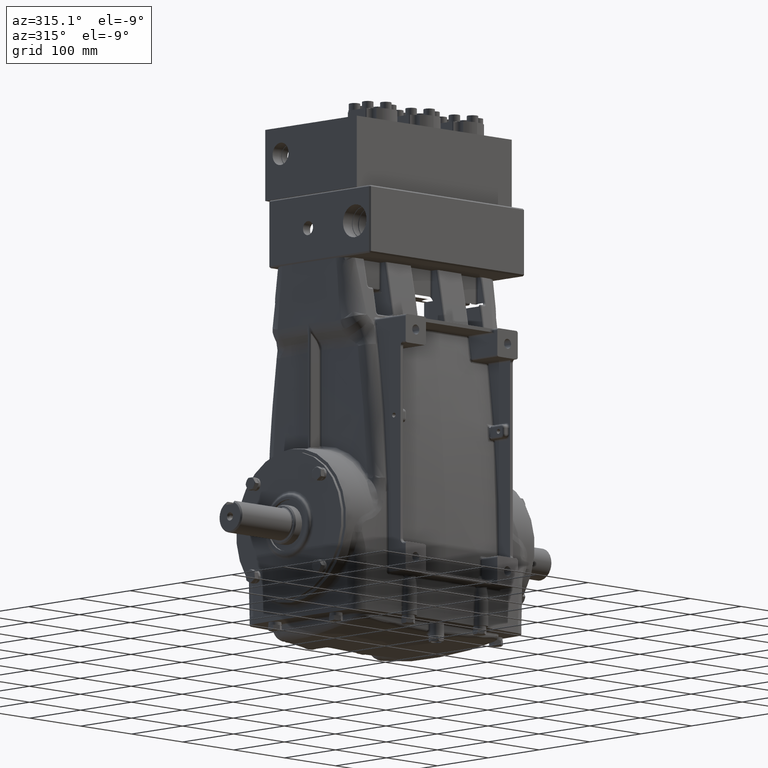
[diagram: clean part render]
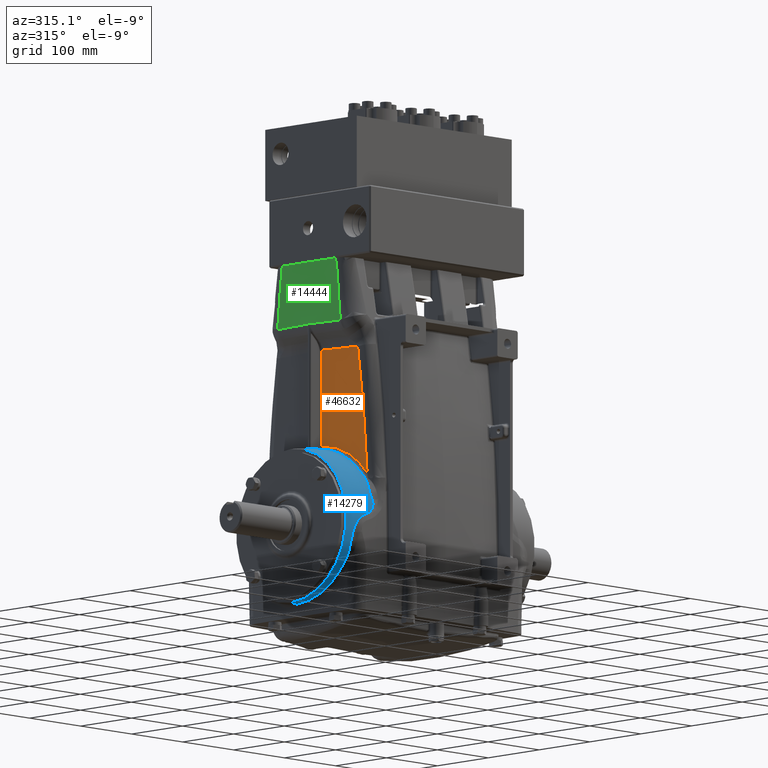
[diagram: same view with three faces highlighted in distinct colors, each labeled with its STEP entity id]
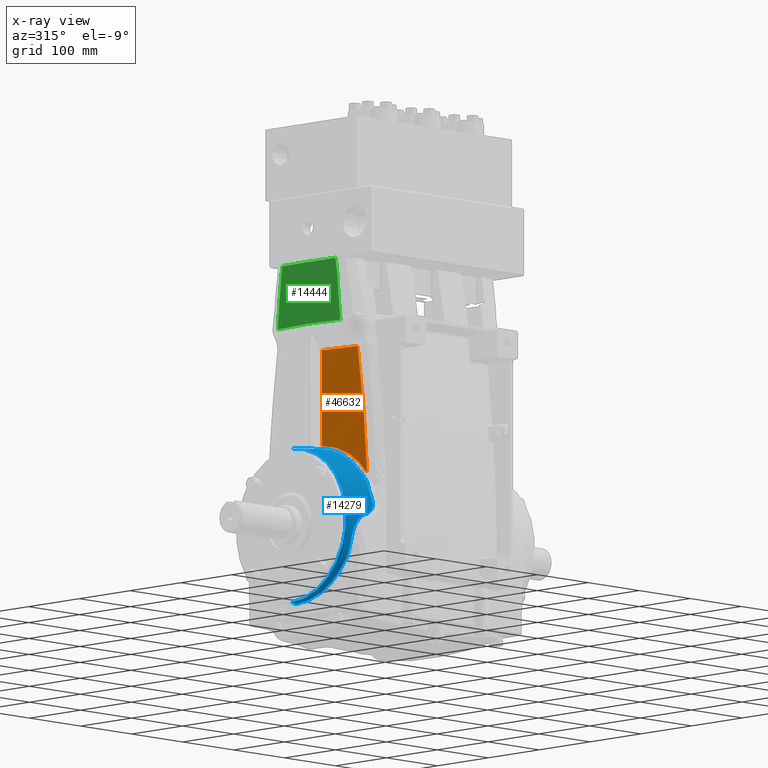
[diagram: x-ray of the same camera — body ghosted, the three highlighted faces saturated]
A machine part, auxiliary view with three faces highlighted in distinct colors.
The next image is the same camera in x-ray (body ghosted, the three faces saturated) — at least one of them is partly hidden behind the body in this view.
Their STEP definitions:

[orange] entity #46632 — the highlighted cylindrical surface (partial cylindrical patch) has radius 1800 mm, axis along (-0, -0, -1).
#473 = B_SPLINE_CURVE_WITH_KNOTS ( 'NONE', 3,
 ( #64012, #44736, #7859, #76674, #20510, #19308, #45537, #13190, #18901, #70556, #514, #69742, #63197, #37778, #14398, #39399, #13598, #38596, #1333, #69339, #38184, #31214, #31617 ),
 .UNSPECIFIED., .F., .F.,
 ( 4, 1, 2, 2, 1, 2, 2, 2, 2, 1, 2, 2, 4 ),
 ( 0.5349815307263874331, 0.5931088393855890040, 0.6221724937151897894, 0.6367043208799900711, 0.6512361480447904638, 0.7093634567039918126, 0.7384271110335925981, 0.7674907653631933835, 0.8256180740223948433, 0.8546817283519956288, 0.8692135555167959104, 0.8837453826815961921, 1.000000000000000000 ),
 .UNSPECIFIED. ) ;
#514 = CARTESIAN_POINT ( 'NONE',  ( -5.171435348120543729, -1.899238648764080439, 4.211186385603319593 ) ) ;
#1333 = CARTESIAN_POINT ( 'NONE',  ( -5.135414459992356129, -2.950376417423476116, 3.553573117918144675 ) ) ;
#2911 = CYLINDRICAL_SURFACE ( 'NONE', #16325, 70.86614173228348079 ) ;
#7859 = CARTESIAN_POINT ( 'NONE',  ( -5.193597701055737481, -0.7125648010901552976, 4.569175118487661891 ) ) ;
#8058 = CARTESIAN_POINT ( 'NONE',  ( -5.103828160289030080, -3.630351101762269383, 3.958572081734730741 ) ) ;
#11002 = CARTESIAN_POINT ( 'NONE',  ( -5.171554968579290090, -2.095380891642889321, 9.894907949546533743 ) ) ;
#12335 = CARTESIAN_POINT ( 'NONE',  ( -5.196215436301595325, -0.2999892646748388847, 14.76377952755905376 ) ) ;
#13190 = CARTESIAN_POINT ( 'NONE',  ( -5.183270686076545175, -1.399232717278946936, 4.406127704644263510 ) ) ;
#13598 = CARTESIAN_POINT ( 'NONE',  ( -5.142026609571409779, -2.788334990919527634, 3.683624314767020014 ) ) ;
#14366 = DIRECTION ( 'NONE',  ( -0.000000000000000000, -0.000000000000000000, -1.000000000000000000 ) ) ;
#14398 = CARTESIAN_POINT ( 'NONE',  ( -5.153446341030536004, -2.483637912582461915, 3.897761962973881555 ) ) ;
#14993 = CARTESIAN_POINT ( 'NONE',  ( -5.108421112649686791, -3.541059446430897761, 5.140955426113560378 ) ) ;
#15354 = ORIENTED_EDGE ( 'NONE', *, *, #62196, .T. ) ;
#16325 = AXIS2_PLACEMENT_3D ( 'NONE', #27867, #14366, #63981 ) ;
#16736 = CARTESIAN_POINT ( 'NONE',  ( -5.100595819511899442, -3.692304923845031173, 2.773909705513609048 ) ) ;
#18226 = EDGE_CURVE ( 'NONE', #47811, #37270, #473, .T. ) ;
#18901 = CARTESIAN_POINT ( 'NONE',  ( -5.179082564476665596, -1.594163382091492887, 4.338404826011008630 ) ) ;
#19308 = CARTESIAN_POINT ( 'NONE',  ( -5.188021273809281020, -1.119331715516740156, 4.481553960286488447 ) ) ;
#20510 = CARTESIAN_POINT ( 'NONE',  ( -5.188646233820334963, -1.079063765704768363, 4.491422358675049686 ) ) ;
#21301 = FACE_OUTER_BOUND ( 'NONE', #26975, .T. ) ;
#21826 = CARTESIAN_POINT ( 'NONE',  ( -5.196215436301595325, -0.2999892646748456015, 9.921154763145716871 ) ) ;
#22111 = ORIENTED_EDGE ( 'NONE', *, *, #64872, .T. ) ;
#23268 = CARTESIAN_POINT ( 'NONE',  ( -5.192414796677748967, -1.197802235764045875, 9.917109637932032484 ) ) ;
#24605 = DIRECTION ( 'NONE',  ( -0.000000000000000000, -0.000000000000000000, -1.000000000000000000 ) ) ;
#26975 = EDGE_LOOP ( 'NONE', ( #15354, #79830, #45864, #22111 ) ) ;
#27867 = CARTESIAN_POINT ( 'NONE',  ( 65.66929133858268131, 0.000000000000000000, 14.76377952755905376 ) ) ;
#31214 = CARTESIAN_POINT ( 'NONE',  ( -5.111039276704646639, -3.492136654345209035, 3.040523931603120289 ) ) ;
#31617 = CARTESIAN_POINT ( 'NONE',  ( -5.100595819511899442, -3.692304923845031173, 2.773909705513609048 ) ) ;
#31976 = VERTEX_POINT ( 'NONE', #54021 ) ;
#33037 = CARTESIAN_POINT ( 'NONE',  ( -5.126400686815228092, -3.163772306234127196, 8.679001979956169066 ) ) ;
#37270 = VERTEX_POINT ( 'NONE', #16736 ) ;
#37725 = LINE ( 'NONE', #12335, #51855 ) ;
#37778 = CARTESIAN_POINT ( 'NONE',  ( -5.158274144286483676, -2.342510202033403210, 3.984190492515086390 ) ) ;
#38184 = CARTESIAN_POINT ( 'NONE',  ( -5.122000726478345811, -3.265992110169547047, 3.282432722865731733 ) ) ;
#38596 = CARTESIAN_POINT ( 'NONE',  ( -5.138070648953320330, -2.885926643782870560, 3.606155695421672025 ) ) ;
#39399 = CARTESIAN_POINT ( 'NONE',  ( -5.145886332172026734, -2.687992169546292498, 3.756877193382564428 ) ) ;
#41745 = CARTESIAN_POINT ( 'NONE',  ( -5.133643484345161490, -2.992401122897866639, 9.854557714864595752 ) ) ;
#44736 = CARTESIAN_POINT ( 'NONE',  ( -5.195514194348325177, -0.4656403134758554940, 4.598683433878208326 ) ) ;
#45537 = CARTESIAN_POINT ( 'NONE',  ( -5.186708247956318019, -1.199573562557864070, 4.460752087031348623 ) ) ;
#45864 = ORIENTED_EDGE ( 'NONE', *, *, #18226, .T. ) ;
#46632 = ADVANCED_FACE ( 'NONE', ( #21301 ), #2911, .T. ) ;
#47811 = VERTEX_POINT ( 'NONE', #58093 ) ;
#48308 = EDGE_CURVE ( 'NONE', #76338, #47811, #37725, .T. ) ;
#51855 = VECTOR ( 'NONE', #24605, 39.37007874015748143 ) ;
#54021 = CARTESIAN_POINT ( 'NONE',  ( -5.133643484345161490, -2.992401122897866639, 9.854557714864595752 ) ) ;
#58093 = CARTESIAN_POINT ( 'NONE',  ( -5.196215431379319405, -0.2999892675408380449, 4.609363232524455789 ) ) ;
#58457 = CARTESIAN_POINT ( 'NONE',  ( -5.100595819511899442, -3.692304923845031173, 2.773909705513609048 ) ) ;
#62196 = EDGE_CURVE ( 'NONE', #31976, #76338, #80441, .T. ) ;
#63197 = CARTESIAN_POINT ( 'NONE',  ( -5.165066211405673791, -2.123480648525600145, 4.102591311547394426 ) ) ;
#63981 = DIRECTION ( 'NONE',  ( -1.000000000000000000, 0.000000000000000000, 0.000000000000000000 ) ) ;
#64012 = CARTESIAN_POINT ( 'NONE',  ( -5.196215431379319405, -0.2999892675408380449, 4.609363232524455789 ) ) ;
#64872 = EDGE_CURVE ( 'NONE', #37270, #31976, #72662, .T. ) ;
#65010 = CARTESIAN_POINT ( 'NONE',  ( -5.133643484345161490, -2.992401122897866639, 9.854557714864595752 ) ) ;
#69339 = CARTESIAN_POINT ( 'NONE',  ( -5.134075517361358365, -2.982328130988832537, 3.526786498855915664 ) ) ;
#69742 = CARTESIAN_POINT ( 'NONE',  ( -5.167258175948661325, -2.049126111418044349, 4.140242007501620414 ) ) ;
#70556 = CARTESIAN_POINT ( 'NONE',  ( -5.173426028039020963, -1.823537640727141529, 4.244562815254782961 ) ) ;
#72662 = B_SPLINE_CURVE_WITH_KNOTS ( 'NONE', 3,
 ( #58457, #8058, #14993, #76465, #33037, #65010 ),
 .UNSPECIFIED., .F., .F.,
 ( 4, 2, 4 ),
 ( 0.04389072724056460040, 0.5219453636202823210, 1.000000000000000000 ),
 .UNSPECIFIED. ) ;
#74084 = CARTESIAN_POINT ( 'NONE',  ( -5.196215436301595325, -0.2999892646748456015, 9.921154763145716871 ) ) ;
#76338 = VERTEX_POINT ( 'NONE', #21826 ) ;
#76465 = CARTESIAN_POINT ( 'NONE',  ( -5.119707369558231136, -3.307770205336899139, 7.501170375224280207 ) ) ;
#76674 = CARTESIAN_POINT ( 'NONE',  ( -5.190432770838087961, -0.9571570281740490183, 4.519572631061041790 ) ) ;
#79830 = ORIENTED_EDGE ( 'NONE', *, *, #48308, .T. ) ;
#80441 =( BOUNDED_CURVE ( )  B_SPLINE_CURVE ( 3, ( #41745, #11002, #23268, #74084 ),
 .UNSPECIFIED., .F., .T. ) 
 B_SPLINE_CURVE_WITH_KNOTS ( ( 4, 4 ),
 ( 3.099353990276439319, 3.137359459100741876 ),
 .UNSPECIFIED. ) 
 CURVE ( )  GEOMETRIC_REPRESENTATION_ITEM ( )  RATIONAL_B_SPLINE_CURVE ( ( 1.000000000000000000, 0.9998796356503556471, 0.9998796356503556471, 1.000000000000000000 ) ) 
 REPRESENTATION_ITEM ( '' )  );

[blue] entity #14279 — the highlighted toroidal blend (fillet) surface has major radius 1682.47 mm and minor (blend) radius 1800 mm.
#230 = CARTESIAN_POINT ( 'NONE',  ( -5.452226697690824686, -4.377846954810129532, 0.5886076985605421807 ) ) ;
#388 = CARTESIAN_POINT ( 'NONE',  ( -6.761989189317062277, -4.019932581190418297, -1.537790767524414459 ) ) ;
#414 = DIRECTION ( 'NONE',  ( 0.000000000000000000, 0.000000000000000000, -1.000000000000000000 ) ) ;
#796 = CARTESIAN_POINT ( 'NONE',  ( -6.755512662042216121, -3.989709033755270529, -1.615906300725288736 ) ) ;
#1569 = CARTESIAN_POINT ( 'NONE',  ( -6.860556389389897092, -1.149506614013858785, -4.141261781313431811 ) ) ;
#1605 = CARTESIAN_POINT ( 'NONE',  ( -6.768889915820693659, -4.170969077990306140, -1.058724830069466050 ) ) ;
#1966 = CARTESIAN_POINT ( 'NONE',  ( -6.782720926932322314, -3.388323354482486227, -2.651994126080757130 ) ) ;
#2007 = CARTESIAN_POINT ( 'NONE',  ( -6.768740072747173819, -4.059454035409691741, -1.427886819638149118 ) ) ;
#2662 = ORIENTED_EDGE ( 'NONE', *, *, #63536, .T. ) ;
#2774 = CARTESIAN_POINT ( 'NONE',  ( -6.857393181869756660, -1.318476161239145794, -4.091237302846451485 ) ) ;
#3178 = CARTESIAN_POINT ( 'NONE',  ( -6.777062413880194036, -3.493126830739050614, -2.512361639567938898 ) ) ;
#3495 = B_SPLINE_CURVE_WITH_KNOTS ( 'NONE', 3,
 ( #42203, #4524, #4923, #22510, #29484, #22116, #28277, #54912, #47530, #79877, #72536, #29078, #54508, #36035, #47129, #23724, #16378, #79469, #65997, #48343, #9859, #41397, #34841, #66398, #73742, #23322, #73341, #67209, #11059, #65588, #34432, #61462, #43806, #50355, #43406, #17984, #25740, #68816, #31097, #75739, #30290, #24934, #75340, #5316, #80675, #6518, #68410, #56109, #55303, #24528, #42610, #69215 ),
 .UNSPECIFIED., .F., .F.,
 ( 4, 2, 2, 1, 1, 1, 1, 1, 1, 2, 2, 2, 2, 1, 1, 1, 1, 2, 2, 1, 1, 1, 1, 1, 1, 2, 2, 2, 2, 1, 1, 1, 1, 2, 2, 4 ),
 ( 0.000000000000000000, 0.2499999999998941402, 0.3749999999998409606, 0.4374999999998143152, 0.4687499999998008815, 0.4843749999997944977, 0.4921874999997915001, 0.4960937499997900013, 0.4980468749997893907, 0.4990234374997894462, 0.4999999999997896127, 0.5624999999998119282, 0.5937499999998233635, 0.6093749999998290257, 0.6171874999998315792, 0.6210937499998328004, 0.6230468749998337996, 0.6240234374998337996, 0.6249999999998337996, 0.6874999999998493427, 0.7187499999998573363, 0.7343749999998613331, 0.7421874999998627764, 0.7460937499998635536, 0.7480468749998639977, 0.7490234374998646638, 0.7499999999998653299, 0.8124999999999001910, 0.8437499999999176215, 0.8593749999999262812, 0.8671874999999307221, 0.8710937499999336087, 0.8730468749999342748, 0.8740234374999346079, 0.8749999999999350520, 1.000000000000000000 ),
 .UNSPECIFIED. ) ;
#4112 = CARTESIAN_POINT ( 'NONE',  ( -6.707636480410831936, -4.269272152041791557, -0.5873321105133046949 ) ) ;
#4524 = CARTESIAN_POINT ( 'NONE',  ( -5.305656023864412596, -4.239529959512510437, 1.284302310588202323 ) ) ;
#4923 = CARTESIAN_POINT ( 'NONE',  ( -5.318056855856638343, -4.204800659512965666, 1.390736067210971205 ) ) ;
#5316 = CARTESIAN_POINT ( 'NONE',  ( -5.245388865127461386, -3.838695377458944069, 2.216902394019355516 ) ) ;
#5551 = CARTESIAN_POINT ( 'NONE',  ( -5.593111408778343119, -4.382073847248402210, 0.4603535067671914449 ) ) ;
#5952 = CARTESIAN_POINT ( 'NONE',  ( -5.282505213801603539, -3.545457832260765052, 2.656209857009934616 ) ) ;
#6352 = CARTESIAN_POINT ( 'NONE',  ( -5.552589012755908549, -4.382192883008598550, 0.4898640428676518943 ) ) ;
#6415 = CARTESIAN_POINT ( 'NONE',  ( -7.283464566929135131, 0.000000000000000000, -4.251968503937008315 ) ) ;
#6517 = CARTESIAN_POINT ( 'NONE',  ( -6.740918979331221195, -3.915313732693833426, -1.791997505407034952 ) ) ;
#6518 = CARTESIAN_POINT ( 'NONE',  ( -5.244850020690116743, -3.835105006543173101, 2.223184635649819274 ) ) ;
#6605 = EDGE_CURVE ( 'NONE', #40082, #63634, #44645, .T. ) ;
#6741 = EDGE_CURVE ( 'NONE', #7091, #51323, #34730, .T. ) ;
#6763 = CARTESIAN_POINT ( 'NONE',  ( -5.625492180459838565, -4.381813255063723211, 0.4377687518188602689 ) ) ;
#6921 = CARTESIAN_POINT ( 'NONE',  ( -6.731215767771499436, -3.826417521904091235, -1.976725220993258425 ) ) ;
#7024 = CARTESIAN_POINT ( 'NONE',  ( -5.285113458666180541, -4.270888028797585889, 1.176226875336369604 ) ) ;
#7091 = VERTEX_POINT ( 'NONE', #5952 ) ;
#7176 = ORIENTED_EDGE ( 'NONE', *, *, #26291, .T. ) ;
#8103 = CARTESIAN_POINT ( 'NONE',  ( -6.815420356594218632, -2.683405552889440937, -3.358736314355757813 ) ) ;
#8506 = CARTESIAN_POINT ( 'NONE',  ( -6.840346168870461874, -1.988285092268783805, -3.808585015943505070 ) ) ;
#9311 = CARTESIAN_POINT ( 'NONE',  ( -6.810981777813371885, -2.789097737540641830, -3.271714332590502483 ) ) ;
#9426 = CARTESIAN_POINT ( 'NONE',  ( -6.042792963683601748, -0.06715152792656117753, 4.368647610304564388 ) ) ;
#9849 = CARTESIAN_POINT ( 'NONE',  ( -6.256972139796842747, -4.349287556346705941, 0.1039599499140023420 ) ) ;
#9859 = CARTESIAN_POINT ( 'NONE',  ( -5.292821867550885351, -3.988355005466881043, 1.926657080733880312 ) ) ;
#10199 = CARTESIAN_POINT ( 'NONE',  ( -5.346703313981766570, -2.046882480459192521, 3.923627105570394846 ) ) ;
#10646 = CARTESIAN_POINT ( 'NONE',  ( -6.221935891201473723, -4.351615247302258460, 0.1312882143718289985 ) ) ;
#10934 = VERTEX_POINT ( 'NONE', #21610 ) ;
#11050 = CARTESIAN_POINT ( 'NONE',  ( -6.167822163475576325, -4.355002693765765542, 0.1704172267670980012 ) ) ;
#11059 = CARTESIAN_POINT ( 'NONE',  ( -5.278355147457036267, -3.948440211607973538, 2.009848408362361116 ) ) ;
#11976 = DIRECTION ( 'NONE',  ( -0.000000000000000000, -1.000000000000000000, -0.000000000000000000 ) ) ;
#12098 = CARTESIAN_POINT ( 'NONE',  ( -5.640286192405227439, -4.381561247519100810, 0.4282766592629140834 ) ) ;
#12154 = CARTESIAN_POINT ( 'NONE',  ( -6.743573656633750524, -3.722442431694437115, -2.163832518601332300 ) ) ;
#12264 = CARTESIAN_POINT ( 'NONE',  ( -6.743573656633750524, -3.722442431694437115, -2.163832518601332300 ) ) ;
#12503 = CARTESIAN_POINT ( 'NONE',  ( -5.844193351167364270, -4.373260214403690505, 0.3322168157031424318 ) ) ;
#12593 = CARTESIAN_POINT ( 'NONE',  ( -5.278661377720268000, -3.616205046919634736, 2.562257044215669577 ) ) ;
#12659 = CARTESIAN_POINT ( 'NONE',  ( -6.731212342985108954, -3.826273590488666887, -1.977004521178542973 ) ) ;
#12681 = FACE_OUTER_BOUND ( 'NONE', #17742, .T. ) ;
#12906 = CARTESIAN_POINT ( 'NONE',  ( -5.298500500409937253, -4.342840703796559509, 0.8690951285239360002 ) ) ;
#13474 = CARTESIAN_POINT ( 'NONE',  ( -6.756194026585197854, -3.992824734453361391, -1.608017481580902963 ) ) ;
#14233 = CARTESIAN_POINT ( 'NONE',  ( -6.840331346353168307, -1.988770746544837431, -3.808333034480418267 ) ) ;
#14272 = CARTESIAN_POINT ( 'NONE',  ( -6.768583453165873287, -4.172372494459684056, -1.053298115987454153 ) ) ;
#14279 = ADVANCED_FACE ( 'NONE', ( #12681 ), #19711, .T. ) ;
#14632 = CARTESIAN_POINT ( 'NONE',  ( -6.851699355223384025, -1.571282171194163135, -3.998532047252807420 ) ) ;
#14854 = ORIENTED_EDGE ( 'NONE', *, *, #68366, .T. ) ;
#15036 = CARTESIAN_POINT ( 'NONE',  ( -6.836607387040711359, -2.110735281414097386, -3.745022453870336498 ) ) ;
#15149 = CARTESIAN_POINT ( 'NONE',  ( -6.052903952729693948, 4.600810365741836405E-13, 4.368279199505273880 ) ) ;
#15439 = CARTESIAN_POINT ( 'NONE',  ( -6.808895054414652037, -2.837435433009226404, -3.230126009502525264 ) ) ;
#15477 = CARTESIAN_POINT ( 'NONE',  ( -6.773161671231755498, -4.141073565798919276, -1.169098092358716645 ) ) ;
#15521 = CARTESIAN_POINT ( 'NONE',  ( -5.335183414089294196, -2.393743460676210688, 3.726337408257798689 ) ) ;
#15557 = CARTESIAN_POINT ( 'NONE',  ( -5.954211097773783656, -0.1846568699069694175, 4.372781866904871251 ) ) ;
#15573 = CARTESIAN_POINT ( 'NONE',  ( -6.623956776486374487, -4.301757181089300275, -0.3624234886624130847 ) ) ;
#15922 = CARTESIAN_POINT ( 'NONE',  ( -5.317848115402902920, -2.821315913226060790, 3.412112914597756230 ) ) ;
#15970 = CARTESIAN_POINT ( 'NONE',  ( -6.345902257179332651, -4.342663005226850004, 0.02597002399471346964 ) ) ;
#16299 = CARTESIAN_POINT ( 'NONE',  ( -5.248968017850662804, -3.757802493684161860, 2.350912471810728821 ) ) ;
#16319 = CARTESIAN_POINT ( 'NONE',  ( -5.372675848871623749, -0.8914824986229529236, 4.335317513942242407 ) ) ;
#16378 = CARTESIAN_POINT ( 'NONE',  ( -5.305199964797225221, -4.024760182266149400, 1.847347445669816457 ) ) ;
#16544 = ORIENTED_EDGE ( 'NONE', *, *, #78549, .T. ) ;
#16775 = CARTESIAN_POINT ( 'NONE',  ( -6.387474940369840759, -4.339014695026800261, -0.01630733992664914686 ) ) ;
#17135 = CARTESIAN_POINT ( 'NONE',  ( -5.325119777322427694, -2.652156354897639012, 3.545364422001644922 ) ) ;
#17174 = CARTESIAN_POINT ( 'NONE',  ( -6.435219139593289839, -4.333870522123774549, -0.07168347468360407315 ) ) ;
#17515 = CARTESIAN_POINT ( 'NONE',  ( -5.694718583531803269, -0.2427046399766175089, 4.391591331754729488 ) ) ;
#17742 = EDGE_LOOP ( 'NONE', ( #76660, #69186, #16544, #63663, #78272, #2662, #7176, #32454, #65279, #31667, #70416, #14854, #18810 ) ) ;
#17984 = CARTESIAN_POINT ( 'NONE',  ( -5.263633695385323996, -3.907272386727659086, 2.090794782813520047 ) ) ;
#18229 = CARTESIAN_POINT ( 'NONE',  ( -5.600200261411828251, -4.382042564924100603, 0.4552533119037787124 ) ) ;
#18385 = CARTESIAN_POINT ( 'NONE',  ( -6.741228812072034948, -3.917066460052903043, -1.788090935411733806 ) ) ;
#18501 = DIRECTION ( 'NONE',  ( 0.000000000000000000, 0.000000000000000000, -1.000000000000000000 ) ) ;
#18618 = CARTESIAN_POINT ( 'NONE',  ( -5.407700577156361099, -4.373219937679551528, 0.6456738543664278795 ) ) ;
#18713 = CARTESIAN_POINT ( 'NONE',  ( -5.248968017850662804, -3.757802493684161860, 2.350912471810728821 ) ) ;
#18810 = ORIENTED_EDGE ( 'NONE', *, *, #66088, .T. ) ;
#19023 = CARTESIAN_POINT ( 'NONE',  ( -5.312260923121404410, -4.350170178469002558, 0.8261122698856654401 ) ) ;
#19184 = CARTESIAN_POINT ( 'NONE',  ( -6.735692608984034990, -3.755324485132027323, -2.108091163166970095 ) ) ;
#19584 = CARTESIAN_POINT ( 'NONE',  ( -7.283464566929135131, 5.318640310989227753E-16, 4.251968503937008315 ) ) ;
#19710 = VERTEX_POINT ( 'NONE', #72351 ) ;
#19711 = TOROIDAL_SURFACE ( 'NONE', #78634, -66.23889039225161923, 70.86614173228348079 ) ;
#19958 = VERTEX_POINT ( 'NONE', #37881 ) ;
#19986 = CARTESIAN_POINT ( 'NONE',  ( -6.772409033554010804, -4.085752614122185378, -1.351315579777846887 ) ) ;
#20347 = CARTESIAN_POINT ( 'NONE',  ( -6.870045935720105135, -0.3193434566332338798, -4.284748208677914505 ) ) ;
#20757 = CARTESIAN_POINT ( 'NONE',  ( -6.832136856838876504, -2.244613890250420241, -3.668315937146799044 ) ) ;
#20877 = CARTESIAN_POINT ( 'NONE',  ( -5.906600935789872331, -0.2106106395662807884, 4.375624426149733459 ) ) ;
#21280 = CARTESIAN_POINT ( 'NONE',  ( -6.051648102136712559, -0.02707801973792365799, 4.368323479826624833 ) ) ;
#21564 = CARTESIAN_POINT ( 'NONE',  ( -6.840315224785745940, -1.989298858235216683, -3.808058961605924164 ) ) ;
#21610 = CARTESIAN_POINT ( 'NONE',  ( -6.052903952729693948, 4.600810365741836405E-13, 4.368279199505273880 ) ) ;
#21648 = CARTESIAN_POINT ( 'NONE',  ( -5.349195940168421259, -1.965281445827603335, 3.964718769115471719 ) ) ;
#21973 = CARTESIAN_POINT ( 'NONE',  ( -6.843395785588927360, -1.885536757555027032, -3.860225524670716002 ) ) ;
#22056 = CARTESIAN_POINT ( 'NONE',  ( -5.378102843281687306, -0.2833750621948362136, 4.413794543378174673 ) ) ;
#22116 = CARTESIAN_POINT ( 'NONE',  ( -5.321662963693478687, -4.097429908449492508, 1.676763126845527641 ) ) ;
#22371 = DIRECTION ( 'NONE',  ( 0.000000000000000000, 1.000000000000000000, -1.224646799147353207E-16 ) ) ;
#22453 = CARTESIAN_POINT ( 'NONE',  ( -5.315119792450679448, -2.881797255373971911, 3.361502187673372166 ) ) ;
#22502 = CARTESIAN_POINT ( 'NONE',  ( -6.680784293693369236, -4.282489457098908936, -0.5013560550549600592 ) ) ;
#22510 = CARTESIAN_POINT ( 'NONE',  ( -5.324459661873143901, -4.147947430728779139, 1.547728872119783716 ) ) ;
#22759 = CARTESIAN_POINT ( 'NONE',  ( -5.378102843281687306, -0.2833750621948362136, 4.413794543378174673 ) ) ;
#22865 = CARTESIAN_POINT ( 'NONE',  ( -5.348350881982605998, -1.993189751515512587, 3.950842842953677270 ) ) ;
#22913 = CARTESIAN_POINT ( 'NONE',  ( -6.634514170600641414, -4.298800530922500585, -0.3850981554307408294 ) ) ;
#23312 = CARTESIAN_POINT ( 'NONE',  ( -6.568716599634469411, -4.314870295861327421, -0.2560218558006047695 ) ) ;
#23322 = CARTESIAN_POINT ( 'NONE',  ( -5.288829739098813043, -3.977297319966235811, 1.950035201673012919 ) ) ;
#23478 = B_SPLINE_CURVE_WITH_KNOTS ( 'NONE', 3,
 ( #76643, #45499, #4112, #22502, #60247, #29070, #59447, #22913, #41795, #48333, #65987, #15573, #35223, #23312, #73333, #54093, #67196, #79061, #47520, #17174, #47919, #29872, #72930, #16775, #15970, #66791, #9849, #10646, #47122, #42194, #34830, #11050, #40576, #72124, #59843 ),
 .UNSPECIFIED., .F., .F.,
 ( 4, 2, 2, 1, 1, 1, 2, 2, 2, 2, 1, 1, 1, 2, 2, 2, 2, 1, 2, 2, 4 ),
 ( 0.000000000000000000, 0.1249999999999960032, 0.1874999999999936717, 0.2187499999999925615, 0.2343749999999920064, 0.2421874999999912847, 0.2460937499999910072, 0.2499999999999907019, 0.3749999999999958922, 0.4374999999999991673, 0.4687500000000007772, 0.4843750000000015543, 0.4921875000000019429, 0.4960937500000021094, 0.5000000000000023315, 0.6249999999999958922, 0.6874999999999917843, 0.7187499999999897859, 0.7343749999999896749, 0.7499999999999896749, 1.000000000000000000 ),
 .UNSPECIFIED. ) ;
#23724 = CARTESIAN_POINT ( 'NONE',  ( -5.308269948146959294, -4.034800107856132634, 1.824697419167922607 ) ) ;
#24415 = VERTEX_POINT ( 'NONE', #40457 ) ;
#24526 = CARTESIAN_POINT ( 'NONE',  ( -6.741153601947713625, -3.916642578294061039, -1.789036525083490092 ) ) ;
#24528 = CARTESIAN_POINT ( 'NONE',  ( -5.240876138025413411, -3.806725151302816190, 2.272669187587147199 ) ) ;
#24771 = CARTESIAN_POINT ( 'NONE',  ( -5.596629818333360262, -4.382059772391410313, 0.4578134586538254447 ) ) ;
#24934 = CARTESIAN_POINT ( 'NONE',  ( -5.246981144700014532, -3.847810595924569199, 2.200810177720411875 ) ) ;
#25172 = CARTESIAN_POINT ( 'NONE',  ( -5.430265722030712894, -4.375815645626513373, 0.6155738014587340823 ) ) ;
#25740 = CARTESIAN_POINT ( 'NONE',  ( -5.263573891506339919, -3.907104179426492685, 2.091118546462018113 ) ) ;
#26141 = CARTESIAN_POINT ( 'NONE',  ( -6.769024995071052153, -4.061439551680172677, -1.422138042972746819 ) ) ;
#26182 = DIRECTION ( 'NONE',  ( 1.000000000000000000, -0.000000000000000000, -0.000000000000000000 ) ) ;
#26291 = EDGE_CURVE ( 'NONE', #52241, #31659, #23478, .T. ) ;
#26510 = CARTESIAN_POINT ( 'NONE',  ( -6.808913350448746904, -2.837015409757271289, -3.230492578756816169 ) ) ;
#26919 = CARTESIAN_POINT ( 'NONE',  ( -6.867515403512304495, -0.6473929552226332929, -4.247828385802266737 ) ) ;
#26955 = CARTESIAN_POINT ( 'NONE',  ( -6.773843534829622648, -4.105481544334638855, -1.289485947020860390 ) ) ;
#27332 = CARTESIAN_POINT ( 'NONE',  ( -6.840449837791557464, -1.984885181854336267, -3.810347142944236598 ) ) ;
#27727 = CARTESIAN_POINT ( 'NONE',  ( -6.870678561281842178, -6.656114456696553760E-06, -4.293398809821471929 ) ) ;
#27768 = CARTESIAN_POINT ( 'NONE',  ( -6.769302195641762943, -4.063398198604781797, -1.416451285294644480 ) ) ;
#27848 = CARTESIAN_POINT ( 'NONE',  ( -6.003933782651906803, -0.1385294359539329390, 4.370268617285308466 ) ) ;
#28222 = CARTESIAN_POINT ( 'NONE',  ( -5.319529365639874996, -2.783577993962043529, 3.443082735167101394 ) ) ;
#28277 = CARTESIAN_POINT ( 'NONE',  ( -5.319451615797968103, -4.081754431363542324, 1.715164579545488621 ) ) ;
#29070 = CARTESIAN_POINT ( 'NONE',  ( -6.654118716905035313, -4.292638853585610370, -0.4306067943964234090 ) ) ;
#29078 = CARTESIAN_POINT ( 'NONE',  ( -5.311060111202238865, -4.045055809354122900, 1.801190758760173205 ) ) ;
#29432 = CARTESIAN_POINT ( 'NONE',  ( -5.355483509911654671, -1.744352515672013659, 4.067097456779020348 ) ) ;
#29484 = CARTESIAN_POINT ( 'NONE',  ( -5.324560837340341912, -4.128202813485261302, 1.599617097563929669 ) ) ;
#29872 = CARTESIAN_POINT ( 'NONE',  ( -6.428986174626336592, -4.334551622624571721, -0.06438905842147611691 ) ) ;
#30125 = CARTESIAN_POINT ( 'NONE',  ( -5.292705248923980754, -4.338886189151017980, 0.8908071618184553175 ) ) ;
#30290 = CARTESIAN_POINT ( 'NONE',  ( -5.248725618623083733, -3.856458460585284076, 2.185382318469708540 ) ) ;
#30532 = CARTESIAN_POINT ( 'NONE',  ( -5.690770243933067185, -4.380328880250757173, 0.3983489069065220267 ) ) ;
#30931 = CARTESIAN_POINT ( 'NONE',  ( -5.608573984103484733, -4.381986747444209129, 0.4493419793301871579 ) ) ;
#31095 = CARTESIAN_POINT ( 'NONE',  ( -6.731138347852286152, -3.822536516097956749, -1.984238585298795376 ) ) ;
#31097 = CARTESIAN_POINT ( 'NONE',  ( -5.254795730896482553, -3.880681134212626393, 2.141258794477319150 ) ) ;
#31139 = EDGE_CURVE ( 'NONE', #19958, #19710, #50163, .T. ) ;
#31495 = CARTESIAN_POINT ( 'NONE',  ( -6.731174515475320419, -3.824547526653386154, -1.980350094391398308 ) ) ;
#31659 = VERTEX_POINT ( 'NONE', #62371 ) ;
#31667 = ORIENTED_EDGE ( 'NONE', *, *, #71636, .T. ) ;
#31747 = CARTESIAN_POINT ( 'NONE',  ( -5.268917427931166131, -4.317385000796020833, 1.001528824427050601 ) ) ;
#31801 = CARTESIAN_POINT ( 'NONE',  ( -6.775299052505742381, -3.525163633873232616, -2.466941749245176840 ) ) ;
#31907 = CARTESIAN_POINT ( 'NONE',  ( -6.740594513232017526, -3.913458111095560188, -1.796123049504764424 ) ) ;
#32089 = VERTEX_POINT ( 'NONE', #16299 ) ;
#32314 = CARTESIAN_POINT ( 'NONE',  ( -6.771870297484810841, -4.153334762727195262, -1.124925501113766213 ) ) ;
#32454 = ORIENTED_EDGE ( 'NONE', *, *, #58872, .T. ) ;
#32679 = CARTESIAN_POINT ( 'NONE',  ( -6.775299052505742381, -3.525163633873232616, -2.466941749245176840 ) ) ;
#33079 = CARTESIAN_POINT ( 'NONE',  ( -6.865617500209338253, -0.8139650550020451902, -4.219555200003291873 ) ) ;
#33263 = B_SPLINE_CURVE_WITH_KNOTS ( 'NONE', 3,
 ( #12503, #43248, #62913, #30532, #55552, #12098, #6763, #30931, #18229, #24771, #49789, #5551, #6352, #37079, #74772, #230, #25172, #80515, #18618, #55150, #43639, #50188, #37488, #75182, #69059, #19023, #12906, #30125, #31747, #49386, #37902 ),
 .UNSPECIFIED., .F., .F.,
 ( 4, 2, 2, 1, 1, 1, 2, 2, 2, 2, 1, 1, 2, 2, 2, 2, 2, 4 ),
 ( 0.000000000000000000, 0.1249999999999663602, 0.1874999999999482636, 0.2187499999999391598, 0.2343749999999345524, 0.2421874999999322486, 0.2460937499999310829, 0.2499999999999299172, 0.3749999999999383826, 0.4374999999999415468, 0.4687499999999432121, 0.4843749999999441003, 0.4921874999999434896, 0.4999999999999429345, 0.6249999999999572564, 0.6874999999999641398, 0.7499999999999711342, 1.000000000000000000 ),
 .UNSPECIFIED. ) ;
#33482 = CARTESIAN_POINT ( 'NONE',  ( -6.799456674089221941, -3.048896577483776849, -3.034956897629160100 ) ) ;
#33892 = CARTESIAN_POINT ( 'NONE',  ( -6.809075158285051721, -2.833298209131499767, -3.233733160270219731 ) ) ;
#34291 = CARTESIAN_POINT ( 'NONE',  ( -6.845175130262186158, -1.822979757355337016, -3.890174134863851219 ) ) ;
#34432 = CARTESIAN_POINT ( 'NONE',  ( -5.267245085482440636, -3.917415906766472222, 2.071169508119000913 ) ) ;
#34730 = B_SPLINE_CURVE_WITH_KNOTS ( 'NONE', 3,
 ( #72473, #46664, #71678, #22453, #79013, #60608, #66338, #73286, #15922, #28222, #47473, #17135, #48284, #15521, #47871, #59796, #10199, #42147, #22865, #67152, #59396, #21648, #53239, #53642, #78210, #29432, #72076, #40527, #41340, #16319, #35178, #72882, #22056 ),
 .UNSPECIFIED., .F., .F.,
 ( 4, 2, 1, 2, 2, 1, 2, 2, 2, 2, 2, 2, 1, 2, 2, 2, 2, 4 ),
 ( 0.000000000000000000, 0.1157547920428601690, 0.1229894665455389252, 0.1247981351712084963, 0.1266068037968781090, 0.1302241410482173900, 0.1446934900535750690, 0.1736321880642906490, 0.2315095840857219756, 0.2459789330910797378, 0.2495962703424191576, 0.2514049389680889646, 0.2532136075937587716, 0.2604482820964376111, 0.2893869801071530246, 0.3472643761285837405, 0.4051417721500145119, 0.4630191681714452834 ),
 .UNSPECIFIED. ) ;
#34768 = CARTESIAN_POINT ( 'NONE',  ( -5.378102843281687306, -0.2833750621948362136, 4.413794543378174673 ) ) ;
#34830 = CARTESIAN_POINT ( 'NONE',  ( -6.173894809298214881, -4.354633930032312250, 0.1662156663522287026 ) ) ;
#34841 = CARTESIAN_POINT ( 'NONE',  ( -5.289738172226412516, -3.979796419124134399, 1.944776512365222754 ) ) ;
#35167 = CARTESIAN_POINT ( 'NONE',  ( -5.536433083215809070, -0.2630354512652037791, 4.403024985947181058 ) ) ;
#35178 = CARTESIAN_POINT ( 'NONE',  ( -5.376194598935549962, -0.5847812345637581899, 4.386955932929419433 ) ) ;
#35223 = CARTESIAN_POINT ( 'NONE',  ( -6.597792134327845837, -4.308821872852073298, -0.3075702369866344377 ) ) ;
#36035 = CARTESIAN_POINT ( 'NONE',  ( -5.310827420709378188, -4.044195664259421896, 1.803163840896819581 ) ) ;
#37079 = CARTESIAN_POINT ( 'NONE',  ( -5.516631373994292709, -4.381475155609512839, 0.5209482173144177608 ) ) ;
#37247 = CARTESIAN_POINT ( 'NONE',  ( -6.756539662265180546, -3.994394130288924316, -1.604026097722979660 ) ) ;
#37488 = CARTESIAN_POINT ( 'NONE',  ( -5.369579215843970132, -4.367712537182746324, 0.7016458823637258257 ) ) ;
#37540 = CARTESIAN_POINT ( 'NONE',  ( -6.761129465886862810, -3.657737450147954483, -2.271805172677818341 ) ) ;
#37648 = CARTESIAN_POINT ( 'NONE',  ( -6.736036830980965284, -3.884160093590172114, -1.859735676483771583 ) ) ;
#37678 = DIRECTION ( 'NONE',  ( 1.000000000000000000, -0.000000000000000000, -0.000000000000000000 ) ) ;
#37881 = CARTESIAN_POINT ( 'NONE',  ( -6.775299052505742381, -3.525163633873232616, -2.466941749245176840 ) ) ;
#37902 = CARTESIAN_POINT ( 'NONE',  ( -5.285113458666180541, -4.270888028797585889, 1.176226875336369604 ) ) ;
#37998 = CARTESIAN_POINT ( 'NONE',  ( -5.282505213801603539, -3.545457832260765052, 2.656209857009934616 ) ) ;
#38087 = EDGE_CURVE ( 'NONE', #40082, #10934, #47974, .T. ) ;
#39238 = CARTESIAN_POINT ( 'NONE',  ( -6.840321463468163721, -1.989094511557710332, -3.808165023118659231 ) ) ;
#39278 = CARTESIAN_POINT ( 'NONE',  ( -6.769234672682800991, -4.169335312256134962, -1.065015400474512042 ) ) ;
#39633 = CARTESIAN_POINT ( 'NONE',  ( -6.791666669284539104, -3.212553947422192024, -2.862286822914435813 ) ) ;
#39746 = CARTESIAN_POINT ( 'NONE',  ( -6.052903952729723258, -0.01358924244932564751, 4.368279199505266774 ) ) ;
#40038 = CARTESIAN_POINT ( 'NONE',  ( -6.824281533347194006, -2.458884260079599482, -3.526075483181453585 ) ) ;
#40082 = VERTEX_POINT ( 'NONE', #19584 ) ;
#40446 = CARTESIAN_POINT ( 'NONE',  ( -6.788319510830220338, -3.279446585660672042, -2.784673199618163064 ) ) ;
#40457 = CARTESIAN_POINT ( 'NONE',  ( -6.870678561281842178, -6.656114456696553760E-06, -4.293398809821471929 ) ) ;
#40485 = CARTESIAN_POINT ( 'NONE',  ( -6.769212500641509145, -4.062759999021000823, -1.418306801085468027 ) ) ;
#40527 = CARTESIAN_POINT ( 'NONE',  ( -5.364713539661464914, -1.356695432434427584, 4.213816742910696078 ) ) ;
#40576 = CARTESIAN_POINT ( 'NONE',  ( -6.062270895659444214, -4.361345115948583206, 0.2421743231900579385 ) ) ;
#41340 = CARTESIAN_POINT ( 'NONE',  ( -5.370379641785859803, -1.046296616308272753, 4.300968441581662915 ) ) ;
#41397 = CARTESIAN_POINT ( 'NONE',  ( -5.290782645020891017, -3.982681736693729047, 1.938687179487587287 ) ) ;
#41795 = CARTESIAN_POINT ( 'NONE',  ( -6.628897686910534937, -4.300396601181189382, -0.3729173023585452551 ) ) ;
#42147 = CARTESIAN_POINT ( 'NONE',  ( -5.348077075711803907, -2.002154449185038931, 3.946330619222776726 ) ) ;
#42194 = CARTESIAN_POINT ( 'NONE',  ( -6.186055783331157798, -4.353886975360287792, 0.1576555847449715719 ) ) ;
#42203 = CARTESIAN_POINT ( 'NONE',  ( -5.285113458666180541, -4.270888028797585889, 1.176226875336369604 ) ) ;
#42610 = CARTESIAN_POINT ( 'NONE',  ( -5.242305005688514541, -3.781181179798318581, 2.314476031552848756 ) ) ;
#43248 = CARTESIAN_POINT ( 'NONE',  ( -5.797980921608731464, -4.375924251866606163, 0.3476324486994460949 ) ) ;
#43404 = CARTESIAN_POINT ( 'NONE',  ( -6.731207263172660937, -3.826057712835239322, -1.977423365663379728 ) ) ;
#43406 = CARTESIAN_POINT ( 'NONE',  ( -5.263767793536644035, -3.907649528166202035, 2.090068651933797206 ) ) ;
#43424 = CARTESIAN_POINT ( 'NONE',  ( 0.000000000000000000, 0.000000000000000000, 0.000000000000000000 ) ) ;
#43639 = CARTESIAN_POINT ( 'NONE',  ( -5.399423982715815029, -4.372087528905888476, 0.6575406099508749325 ) ) ;
#43737 = CARTESIAN_POINT ( 'NONE',  ( -5.267487184174084014, -3.687486115913007012, 2.460715977346304317 ) ) ;
#43803 = CARTESIAN_POINT ( 'NONE',  ( -6.731091713089957018, -3.818523432753305080, -1.991968248383224172 ) ) ;
#43806 = CARTESIAN_POINT ( 'NONE',  ( -5.264437919540695177, -3.909533688071621160, 2.086437218481550726 ) ) ;
#44203 = CARTESIAN_POINT ( 'NONE',  ( -6.735031244750544488, -3.876306788668215653, -1.876253394706852928 ) ) ;
#44612 = CARTESIAN_POINT ( 'NONE',  ( -6.732524027923277643, -3.853538430214718868, -1.923355520097859594 ) ) ;
#44645 = CIRCLE ( 'NONE', #74754, 4.251968503937008315 ) ;
#45018 = CARTESIAN_POINT ( 'NONE',  ( -6.768637110777626198, -4.172129813281487465, -1.054237993089354397 ) ) ;
#45372 = CARTESIAN_POINT ( 'NONE',  ( -6.846321816123607462, -1.781158836107737731, -3.909371468185345311 ) ) ;
#45448 = DIRECTION ( 'NONE',  ( 0.000000000000000000, 0.000000000000000000, -1.000000000000000000 ) ) ;
#45499 = CARTESIAN_POINT ( 'NONE',  ( -6.721249404318140108, -4.259575360455209569, -0.6455445583514995977 ) ) ;
#45819 = CARTESIAN_POINT ( 'NONE',  ( -6.768049606184261435, -4.054787162604437611, -1.441313965480647274 ) ) ;
#45891 = CARTESIAN_POINT ( 'NONE',  ( -6.016060877531118400, -0.1219615921566091776, 4.369730204853509825 ) ) ;
#46582 = CARTESIAN_POINT ( 'NONE',  ( -6.813025440801251165, -2.740897297909330010, -3.312010950038106305 ) ) ;
#46664 = CARTESIAN_POINT ( 'NONE',  ( -5.292862992413175149, -3.354803385979265862, 2.909400442211834914 ) ) ;
#46697 = CARTESIAN_POINT ( 'NONE',  ( -5.942668485757019781, -0.1919606028169324741, 4.373437235909050536 ) ) ;
#46991 = CARTESIAN_POINT ( 'NONE',  ( -6.816969067477862687, -2.645386789812176342, -3.388540520628097852 ) ) ;
#47122 = CARTESIAN_POINT ( 'NONE',  ( -6.204176677003023777, -4.352761056187271826, 0.1446779791935388082 ) ) ;
#47129 = CARTESIAN_POINT ( 'NONE',  ( -5.310772321362226656, -4.043992840818762424, 1.803628820538829336 ) ) ;
#47473 = CARTESIAN_POINT ( 'NONE',  ( -5.321186961798974657, -2.745250788671713238, 3.473492820575971418 ) ) ;
#47520 = CARTESIAN_POINT ( 'NONE',  ( -6.443859143764286479, -4.332905796717283486, -0.08193457408180279677 ) ) ;
#47530 = CARTESIAN_POINT ( 'NONE',  ( -5.313246836047397892, -4.053450689289491926, 1.781832850618884967 ) ) ;
#47871 = CARTESIAN_POINT ( 'NONE',  ( -5.339942747638459331, -2.258164140088943395, 3.809695860399722189 ) ) ;
#47919 = CARTESIAN_POINT ( 'NONE',  ( -6.431483704201953699, -4.334279741510877138, -0.06730486239023927841 ) ) ;
#47974 = CIRCLE ( 'NONE', #50614, 70.86614173228348079 ) ;
#48107 = B_SPLINE_CURVE_WITH_KNOTS ( 'NONE', 3,
 ( #50019, #75006, #20877, #46697, #15557, #59831, #78652, #65567, #27848, #66375, #45891, #70909, #52867, #9426, #53676, #21280, #39746, #15149 ),
 .UNSPECIFIED., .F., .F.,
 ( 4, 2, 2, 2, 2, 2, 2, 2, 4 ),
 ( 2.602085213965210642E-18, 0.002085868833822877768, 0.003128803250734277838, 0.004171737667645678341, 0.004693204876101378376, 0.005214672084557078410, 0.006257606501468478480, 0.007300540918379880284, 0.008343475335291280354 ),
 .UNSPECIFIED. ) ;
#48284 = CARTESIAN_POINT ( 'NONE',  ( -5.327681100664341862, -2.588614108662529389, 3.591795233102687668 ) ) ;
#48333 = CARTESIAN_POINT ( 'NONE',  ( -6.626452920714997141, -4.301073741728467681, -0.3677049135944171487 ) ) ;
#48343 = CARTESIAN_POINT ( 'NONE',  ( -5.294484533523724501, -3.993052987377649465, 1.916601316235529540 ) ) ;
#49386 = CARTESIAN_POINT ( 'NONE',  ( -5.267972631650792437, -4.296123836560971299, 1.089423411394453423 ) ) ;
#49664 = CARTESIAN_POINT ( 'NONE',  ( 0.000000000000000000, 0.000000000000000000, 66.23889039225161923 ) ) ;
#49789 = CARTESIAN_POINT ( 'NONE',  ( -5.594253588603638860, -4.382069742210082275, 0.4595261597819823018 ) ) ;
#49948 = CARTESIAN_POINT ( 'NONE',  ( -6.731889428847205536, -3.790283296050556583, -2.045109583392409558 ) ) ;
#50019 = CARTESIAN_POINT ( 'NONE',  ( -5.852955202024553216, -0.2223837610835557310, 4.379492462996530833 ) ) ;
#50163 = B_SPLINE_CURVE_WITH_KNOTS ( 'NONE', 3,
 ( #31801, #56807, #37540, #12154 ),
 .UNSPECIFIED., .F., .F.,
 ( 4, 4 ),
 ( 0.000000000000000000, 1.000000000000000000 ),
 .UNSPECIFIED. ) ;
#50188 = CARTESIAN_POINT ( 'NONE',  ( -5.397829931653226332, -4.371859897413518325, 0.6598692163657468024 ) ) ;
#50355 = CARTESIAN_POINT ( 'NONE',  ( -5.263968905464979642, -3.908215090599751917, 2.088979380194332602 ) ) ;
#50614 = AXIS2_PLACEMENT_3D ( 'NONE', #65046, #22371, #78121 ) ;
#50755 = CARTESIAN_POINT ( 'NONE',  ( -6.741082953930465749, -3.916243615489571450, -1.789926112856305318 ) ) ;
#51168 = CARTESIAN_POINT ( 'NONE',  ( -6.771076656602896371, -4.159314730884968725, -1.102980250847684252 ) ) ;
#51323 = VERTEX_POINT ( 'NONE', #22759 ) ;
#51947 = CARTESIAN_POINT ( 'NONE',  ( -6.809628024733679119, -2.820562080111210790, -3.244787666238047485 ) ) ;
#51986 = CARTESIAN_POINT ( 'NONE',  ( -6.768738695158040386, -4.171665958775559346, -1.056032273808444444 ) ) ;
#52241 = VERTEX_POINT ( 'NONE', #57374 ) ;
#52352 = CARTESIAN_POINT ( 'NONE',  ( -6.841410081862541404, -1.953125779857868949, -3.826649664036522847 ) ) ;
#52867 = CARTESIAN_POINT ( 'NONE',  ( -6.032930112428861236, -0.09242468186657670781, 4.369029578196892416 ) ) ;
#53158 = CARTESIAN_POINT ( 'NONE',  ( -6.812215160624814025, -2.760138350253304118, -3.296099339399352068 ) ) ;
#53229 = CARTESIAN_POINT ( 'NONE',  ( -5.852955202024553216, -0.2223837610835557310, 4.379492462996530833 ) ) ;
#53239 = CARTESIAN_POINT ( 'NONE',  ( -5.349913849469969840, -1.941372402837145295, 3.976491695785808300 ) ) ;
#53642 = CARTESIAN_POINT ( 'NONE',  ( -5.350618651457718755, -1.917420524571910923, 3.988018707478998781 ) ) ;
#53676 = CARTESIAN_POINT ( 'NONE',  ( -6.046612562164688676, -0.05385365598223122025, 4.368506876215717760 ) ) ;
#53876 = B_SPLINE_CURVE_WITH_KNOTS ( 'NONE', 3,
 ( #18713, #43737, #12593, #37998 ),
 .UNSPECIFIED., .F., .F.,
 ( 4, 4 ),
 ( 0.000000000000000000, 1.000000000000000000 ),
 .UNSPECIFIED. ) ;
#54093 = CARTESIAN_POINT ( 'NONE',  ( -6.502229233457226698, -4.325552829848135161, -0.1566654792113871819 ) ) ;
#54508 = CARTESIAN_POINT ( 'NONE',  ( -5.310920645820641717, -4.044539777175527817, 1.802374642590534481 ) ) ;
#54912 = CARTESIAN_POINT ( 'NONE',  ( -5.315537471574652173, -4.062967783371290942, 1.759661310043737048 ) ) ;
#55150 = CARTESIAN_POINT ( 'NONE',  ( -5.402718969152608075, -4.372545802904329371, 0.6527826598623664989 ) ) ;
#55302 = CARTESIAN_POINT ( 'NONE',  ( -6.731218028479841742, -3.826511252224184201, -1.976543300093593247 ) ) ;
#55303 = CARTESIAN_POINT ( 'NONE',  ( -5.244711214851978553, -3.834130444811791438, 2.224885336527420598 ) ) ;
#55552 = CARTESIAN_POINT ( 'NONE',  ( -5.670264442255662729, -4.380926400996604464, 0.4098633101623554986 ) ) ;
#55709 = CARTESIAN_POINT ( 'NONE',  ( -6.731101245516155629, -3.810533928110992452, -2.007238626866435727 ) ) ;
#56108 = CARTESIAN_POINT ( 'NONE',  ( -6.759590239296187519, -4.008150297972354892, -1.568887333705361264 ) ) ;
#56109 = CARTESIAN_POINT ( 'NONE',  ( -5.244729044909036020, -3.834256619301906532, 2.224665235145815601 ) ) ;
#56510 = CARTESIAN_POINT ( 'NONE',  ( -6.754493839372696762, -3.985017647852342026, -1.627732639430232497 ) ) ;
#56807 = CARTESIAN_POINT ( 'NONE',  ( -6.771704297396899719, -3.591557059678607722, -2.372670312559892469 ) ) ;
#56915 = CARTESIAN_POINT ( 'NONE',  ( -6.732605250249505069, -3.781432370043913860, -2.061276319292858261 ) ) ;
#57374 = CARTESIAN_POINT ( 'NONE',  ( -6.730573574017554073, -4.248874556953237125, -0.7046321130404791244 ) ) ;
#57688 = CARTESIAN_POINT ( 'NONE',  ( -6.809259774546454480, -2.829051348678095490, -3.237427632528421917 ) ) ;
#57726 = CARTESIAN_POINT ( 'NONE',  ( -6.765118617075710716, -4.036962585189385777, -1.491373123972934867 ) ) ;
#57999 = VERTEX_POINT ( 'NONE', #75075 ) ;
#58092 = CARTESIAN_POINT ( 'NONE',  ( -6.803899520443813742, -2.952105275518776661, -3.130031560935395696 ) ) ;
#58136 = CARTESIAN_POINT ( 'NONE',  ( -6.766566081581321335, -4.045316733473591775, -1.468221082252122889 ) ) ;
#58501 = CARTESIAN_POINT ( 'NONE',  ( -6.870678564626770068, -0.1578652924856824846, -4.293398565063179184 ) ) ;
#58872 = EDGE_CURVE ( 'NONE', #31659, #77857, #33263, .T. ) ;
#58908 = CARTESIAN_POINT ( 'NONE',  ( -6.808982727362328902, -2.835422187765054947, -3.231882304926656513 ) ) ;
#58946 = CARTESIAN_POINT ( 'NONE',  ( -6.749598516426472905, -4.226689577500353678, -0.8273112537041760195 ) ) ;
#59316 = CARTESIAN_POINT ( 'NONE',  ( -6.780469501485709927, -3.430324072019795612, -2.596912706003274618 ) ) ;
#59396 = CARTESIAN_POINT ( 'NONE',  ( -5.348907727861230477, -1.974841547165123057, 3.959989902214709812 ) ) ;
#59447 = CARTESIAN_POINT ( 'NONE',  ( -6.645395261595570702, -4.295543551327120291, -0.4095342519989072505 ) ) ;
#59796 = CARTESIAN_POINT ( 'NONE',  ( -5.345589167394744656, -2.082359408750789509, 3.905008615074802236 ) ) ;
#59831 = CARTESIAN_POINT ( 'NONE',  ( -5.975948389439836639, -0.1679853590259796359, 4.371616470171747260 ) ) ;
#59843 = CARTESIAN_POINT ( 'NONE',  ( -5.844193351167364270, -4.373260214403690505, 0.3322168157031424318 ) ) ;
#60247 = CARTESIAN_POINT ( 'NONE',  ( -6.670761424443388599, -4.286673754681600279, -0.4729210223242826250 ) ) ;
#60608 = CARTESIAN_POINT ( 'NONE',  ( -5.316832120927290184, -2.843931474088707390, 3.393375604243837884 ) ) ;
#61462 = CARTESIAN_POINT ( 'NONE',  ( -5.265374959331819760, -3.912166689098226513, 2.081350786721221535 ) ) ;
#61865 = CARTESIAN_POINT ( 'NONE',  ( -6.731531939893080185, -3.839417934685047662, -1.951489633889350372 ) ) ;
#62371 = CARTESIAN_POINT ( 'NONE',  ( -5.844193351167364270, -4.373260214403690505, 0.3322168157031424318 ) ) ;
#62673 = CARTESIAN_POINT ( 'NONE',  ( -6.731285648103863650, -3.803751732541321040, -2.020004736497500897 ) ) ;
#62913 = CARTESIAN_POINT ( 'NONE',  ( -5.753848202574189941, -4.378063162022875154, 0.3660906642775688113 ) ) ;
#63074 = CARTESIAN_POINT ( 'NONE',  ( -6.739959513446495798, -3.909763621750419027, -1.804305237691292252 ) ) ;
#63350 = B_SPLINE_CURVE_WITH_KNOTS ( 'NONE', 3,
 ( #34768, #35167, #17515, #53229 ),
 .UNSPECIFIED., .F., .F.,
 ( 4, 4 ),
 ( 0.000000000000000000, 0.01219153341270861821 ),
 .UNSPECIFIED. ) ;
#63536 = EDGE_CURVE ( 'NONE', #19710, #52241, #80624, .T. ) ;
#63634 = VERTEX_POINT ( 'NONE', #6415 ) ;
#63663 = ORIENTED_EDGE ( 'NONE', *, *, #65457, .T. ) ;
#64248 = CARTESIAN_POINT ( 'NONE',  ( -6.842491284281119412, -1.916771637632535441, -3.844963091633978980 ) ) ;
#64282 = CARTESIAN_POINT ( 'NONE',  ( -6.769891821042897107, -4.166036799275870450, -1.077628240294868922 ) ) ;
#64649 = CARTESIAN_POINT ( 'NONE',  ( -6.775906751719444010, -3.513937860746829678, -2.482881141802968816 ) ) ;
#65046 = CARTESIAN_POINT ( 'NONE',  ( 0.000000000000000000, -8.111924509794331596E-15, -66.23889039225161923 ) ) ;
#65053 = CARTESIAN_POINT ( 'NONE',  ( -6.821471503927290847, -2.532525052308282287, -3.474124470508868967 ) ) ;
#65279 = ORIENTED_EDGE ( 'NONE', *, *, #75483, .T. ) ;
#65450 = CARTESIAN_POINT ( 'NONE',  ( -6.840380742072735387, -1.987151851700647232, -3.809172723644252745 ) ) ;
#65457 = EDGE_CURVE ( 'NONE', #24415, #19958, #65700, .T. ) ;
#65567 = CARTESIAN_POINT ( 'NONE',  ( -5.999597013839331971, -0.1437538826542377746, 4.370468212335667069 ) ) ;
#65588 = CARTESIAN_POINT ( 'NONE',  ( -5.270969524134424766, -3.927847135075754892, 2.050773436753649204 ) ) ;
#65700 = B_SPLINE_CURVE_WITH_KNOTS ( 'NONE', 3,
 ( #27727, #58501, #20347, #26919, #33079, #1569, #2774, #14632, #70794, #45372, #34291, #21973, #64248, #52352, #70388, #77317, #27332, #65450, #8506, #14233, #39238, #21564, #15036, #20757, #40038, #65053, #46991, #8103, #46582, #53158, #9311, #76511, #51947, #57688, #33892, #58908, #76911, #26510, #71597, #78128, #15439, #58092, #33482, #39633, #40446, #1966, #59316, #3178, #64649, #32679 ),
 .UNSPECIFIED., .F., .F.,
 ( 4, 2, 2, 2, 2, 2, 1, 1, 1, 1, 1, 1, 1, 2, 2, 2, 2, 2, 2, 1, 1, 1, 1, 1, 1, 1, 2, 2, 2, 2, 2, 4 ),
 ( 0.5000695428670515197, 0.5625608500086516361, 0.6250521571502516416, 0.6875434642918517580, 0.7187891178626517608, 0.7344119446480518176, 0.7422233580407517906, 0.7461290647371018325, 0.7480819180852767980, 0.7490583447593643918, 0.7495465580964080221, 0.7497906647649299483, 0.7499127180991909114, 0.7499737447663213930, 0.7500347714334518745, 0.8125260785749846004, 0.8437717321457509634, 0.8593945589311340338, 0.8672059723238256801, 0.8711116790201713922, 0.8730645323683441372, 0.8740409590424306208, 0.8745291723794736960, 0.8747732790479954001, 0.8748953323822562522, 0.8749563590493867338, 0.8749868723829521411, 0.8750173857165174374, 0.9062630392873880503, 0.9375086928582587742, 0.9687543464291292761, 1.000000000000000000 ),
 .UNSPECIFIED. ) ;
#65987 = CARTESIAN_POINT ( 'NONE',  ( -6.624814698335638852, -4.301523644101000521, -0.3642317610824867269 ) ) ;
#65997 = CARTESIAN_POINT ( 'NONE',  ( -5.297696214597741537, -4.002234616916990895, 1.896833489434272657 ) ) ;
#66015 = CIRCLE ( 'NONE', #80370, 70.86614173228348079 ) ;
#66088 = EDGE_CURVE ( 'NONE', #57999, #10934, #48107, .T. ) ;
#66338 = CARTESIAN_POINT ( 'NONE',  ( -5.317175075426260555, -2.836321150402508984, 3.399705583727748781 ) ) ;
#66375 = CARTESIAN_POINT ( 'NONE',  ( -6.012157633394850542, -0.1276479792505826605, 4.369899943126780428 ) ) ;
#66398 = CARTESIAN_POINT ( 'NONE',  ( -5.289209720429199457, -3.978341512737387120, 1.947839710526807933 ) ) ;
#66791 = CARTESIAN_POINT ( 'NONE',  ( -6.279686732820322526, -4.347687810712432821, 0.08500943929024674939 ) ) ;
#67152 = CARTESIAN_POINT ( 'NONE',  ( -5.348760172279710901, -1.979714320026889407, 3.957568190696215904 ) ) ;
#67196 = CARTESIAN_POINT ( 'NONE',  ( -6.474864764607008105, -4.329175956938797754, -0.1205002162577945152 ) ) ;
#67209 = CARTESIAN_POINT ( 'NONE',  ( -5.284577248440110786, -3.965627746816013932, 1.974546029527880053 ) ) ;
#68366 = EDGE_CURVE ( 'NONE', #51323, #57999, #63350, .T. ) ;
#68409 = CARTESIAN_POINT ( 'NONE',  ( -6.743715608283930685, -3.931051485834994530, -1.756877430085299396 ) ) ;
#68410 = CARTESIAN_POINT ( 'NONE',  ( -5.244777197799296076, -3.834595763914238731, 2.224073487091059675 ) ) ;
#68815 = CARTESIAN_POINT ( 'NONE',  ( -6.747520065197004868, -3.951306245818398288, -1.710173680909179206 ) ) ;
#68816 = CARTESIAN_POINT ( 'NONE',  ( -5.258742469391834540, -3.893513728842759924, 2.117267513317046657 ) ) ;
#69059 = CARTESIAN_POINT ( 'NONE',  ( -5.320210317018426061, -4.353530879998188219, 0.8049148781644032136 ) ) ;
#69186 = ORIENTED_EDGE ( 'NONE', *, *, #6605, .T. ) ;
#69213 = CARTESIAN_POINT ( 'NONE',  ( -6.739004043246305642, -3.738513855680743347, -2.137054053296087108 ) ) ;
#69215 = CARTESIAN_POINT ( 'NONE',  ( -5.248968017850662804, -3.757802493684161860, 2.350912471810728821 ) ) ;
#69619 = CARTESIAN_POINT ( 'NONE',  ( -6.752139155586266206, -3.973946382880573669, -1.655278817996837404 ) ) ;
#70388 = CARTESIAN_POINT ( 'NONE',  ( -6.840862992905202944, -1.971279917177763297, -3.817365778036707624 ) ) ;
#70416 = ORIENTED_EDGE ( 'NONE', *, *, #6741, .T. ) ;
#70794 = CARTESIAN_POINT ( 'NONE',  ( -6.849643243625982869, -1.655438360219964933, -3.964688417888103000 ) ) ;
#70833 = CARTESIAN_POINT ( 'NONE',  ( -6.773628043278896449, -4.132497788043642650, -1.198922694049354254 ) ) ;
#70909 = CARTESIAN_POINT ( 'NONE',  ( -6.026868015031254799, -0.1045497459394396783, 4.369271410216344798 ) ) ;
#71281 = CARTESIAN_POINT ( 'NONE',  ( -7.283464566929135131, 0.000000000000000000, 0.000000000000000000 ) ) ;
#71597 = CARTESIAN_POINT ( 'NONE',  ( -6.808903435623841816, -2.837243029831901797, -3.230293933211843438 ) ) ;
#71636 = EDGE_CURVE ( 'NONE', #32089, #7091, #53876, .T. ) ;
#71678 = CARTESIAN_POINT ( 'NONE',  ( -5.303506823413157711, -3.136911741910986873, 3.141961970529936643 ) ) ;
#72076 = CARTESIAN_POINT ( 'NONE',  ( -5.361343644619894100, -1.512279920167193037, 4.161011640338831974 ) ) ;
#72124 = CARTESIAN_POINT ( 'NONE',  ( -5.956466323735234880, -4.366787883602134990, 0.2947653606478161104 ) ) ;
#72351 = CARTESIAN_POINT ( 'NONE',  ( -6.743573656633750524, -3.722442431694437115, -2.163832518601332300 ) ) ;
#72473 = CARTESIAN_POINT ( 'NONE',  ( -5.282505213801603539, -3.545457832260765052, 2.656209857009934616 ) ) ;
#72536 = CARTESIAN_POINT ( 'NONE',  ( -5.311382924430036567, -4.046258923857613432, 1.798427758701154122 ) ) ;
#72882 = CARTESIAN_POINT ( 'NONE',  ( -5.377417141915541876, -0.4328939148074739118, 4.404247527432303855 ) ) ;
#72930 = CARTESIAN_POINT ( 'NONE',  ( -6.427696624954728044, -4.334691092329292061, -0.06288974928670586217 ) ) ;
#73286 = CARTESIAN_POINT ( 'NONE',  ( -5.317342321082564105, -2.832601769586599261, 3.402788683023687977 ) ) ;
#73333 = CARTESIAN_POINT ( 'NONE',  ( -6.519545769471078778, -4.323000225483816905, -0.1811929594073720950 ) ) ;
#73341 = CARTESIAN_POINT ( 'NONE',  ( -5.288741185596855132, -3.977054203475378635, 1.950546017135985410 ) ) ;
#73742 = CARTESIAN_POINT ( 'NONE',  ( -5.288981909214208521, -3.977715348663694694, 1.949156476585574671 ) ) ;
#74754 = AXIS2_PLACEMENT_3D ( 'NONE', #71281, #26182, #45448 ) ;
#74772 = CARTESIAN_POINT ( 'NONE',  ( -5.467701986157851302, -4.378937014143375883, 0.5712353811270529658 ) ) ;
#75006 = CARTESIAN_POINT ( 'NONE',  ( -5.880136266687284063, -0.2188931460258252137, 4.377414182146014632 ) ) ;
#75075 = CARTESIAN_POINT ( 'NONE',  ( -5.852955202024553216, -0.2223837610835557310, 4.379492462996530833 ) ) ;
#75182 = CARTESIAN_POINT ( 'NONE',  ( -5.347265800610656150, -4.362738842486478141, 0.7422284792108143625 ) ) ;
#75340 = CARTESIAN_POINT ( 'NONE',  ( -5.246184882166797792, -3.843550528794099641, 2.208365090789701668 ) ) ;
#75483 = EDGE_CURVE ( 'NONE', #77857, #32089, #3495, .T. ) ;
#75737 = CARTESIAN_POINT ( 'NONE',  ( -6.731195811846909294, -3.825554134823776931, -1.978399928989390544 ) ) ;
#75739 = CARTESIAN_POINT ( 'NONE',  ( -5.250091199762811023, -3.862394063753804119, 2.174673046962343648 ) ) ;
#76144 = CARTESIAN_POINT ( 'NONE',  ( -6.730573574017554073, -4.248874556953237125, -0.7046321130404791244 ) ) ;
#76511 = CARTESIAN_POINT ( 'NONE',  ( -6.810360595770876380, -2.803601870816724517, -3.259392434335058653 ) ) ;
#76643 = CARTESIAN_POINT ( 'NONE',  ( -6.730573574017554073, -4.248874556953237125, -0.7046321130404791244 ) ) ;
#76660 = ORIENTED_EDGE ( 'NONE', *, *, #38087, .F. ) ;
#76911 = CARTESIAN_POINT ( 'NONE',  ( -6.808936481202946922, -2.836484313164438831, -3.230955971781450220 ) ) ;
#77317 = CARTESIAN_POINT ( 'NONE',  ( -6.840587826486391521, -1.980351089874754056, -3.812691997812547751 ) ) ;
#77359 = CARTESIAN_POINT ( 'NONE',  ( -6.762251787850180662, -4.200762186085230887, -0.9432265317263172077 ) ) ;
#77857 = VERTEX_POINT ( 'NONE', #7024 ) ;
#78121 = DIRECTION ( 'NONE',  ( 0.000000000000000000, 1.224646799147353207E-16, 1.000000000000000000 ) ) ;
#78128 = CARTESIAN_POINT ( 'NONE',  ( -6.808896825375115647, -2.837394778157729114, -3.230161492062117556 ) ) ;
#78210 = CARTESIAN_POINT ( 'NONE',  ( -5.353395916231810325, -1.821489951282117659, 4.033343774840957963 ) ) ;
#78272 = ORIENTED_EDGE ( 'NONE', *, *, #31139, .T. ) ;
#78549 = EDGE_CURVE ( 'NONE', #63634, #24415, #66015, .T. ) ;
#78634 = AXIS2_PLACEMENT_3D ( 'NONE', #43424, #37678, #414 ) ;
#78652 = CARTESIAN_POINT ( 'NONE',  ( -5.985930046695576934, -0.1587953005735744938, 4.371117250021248068 ) ) ;
#79013 = CARTESIAN_POINT ( 'NONE',  ( -5.315975083824904246, -2.862930812417869841, 3.377518661357401974 ) ) ;
#79061 = CARTESIAN_POINT ( 'NONE',  ( -6.460835113570388089, -4.330936051729655567, -0.1025740651880077264 ) ) ;
#79469 = CARTESIAN_POINT ( 'NONE',  ( -5.299685800845241879, -4.008069984424755816, 1.884113252505273950 ) ) ;
#79877 = CARTESIAN_POINT ( 'NONE',  ( -5.312018126911107530, -4.048661308856052798, 1.792899341897236543 ) ) ;
#80274 = CARTESIAN_POINT ( 'NONE',  ( -6.737799978136457923, -3.896290400518134245, -1.833715513801846386 ) ) ;
#80370 = AXIS2_PLACEMENT_3D ( 'NONE', #49664, #11976, #18501 ) ;
#80515 = CARTESIAN_POINT ( 'NONE',  ( -5.419598223087092492, -4.374700897674079769, 0.6292837358809908466 ) ) ;
#80624 = B_SPLINE_CURVE_WITH_KNOTS ( 'NONE', 3,
 ( #12264, #69213, #19184, #56915, #49948, #62673, #55709, #43803, #31095, #31495, #75737, #43404, #12659, #6921, #55302, #61865, #44612, #44203, #37648, #80274, #80674, #63074, #31907, #6517, #50755, #24526, #81077, #18385, #68409, #68815, #69619, #56510, #796, #13474, #37247, #56108, #388, #57726, #58136, #45819, #2007, #26141, #40485, #27768, #19986, #26955, #70833, #15477, #32314, #51168, #64282, #39278, #1605, #51986, #45018, #14272, #77359, #58946, #76144 ),
 .UNSPECIFIED., .F., .F.,
 ( 4, 2, 2, 1, 1, 1, 1, 1, 1, 2, 2, 2, 2, 1, 1, 1, 1, 1, 2, 2, 1, 1, 1, 2, 2, 2, 1, 1, 1, 2, 2, 2, 2, 1, 1, 1, 1, 2, 2, 4 ),
 ( 0.000000000000000000, 0.06250000000010388912, 0.09375000000015583368, 0.1093750000001817990, 0.1171875000001951911, 0.1210937500002014916, 0.1230468750002046419, 0.1240234375002064043, 0.1245117187502072925, 0.1247558593752073341, 0.1250000000002073619, 0.1875000000001895706, 0.2187500000001804945, 0.2343750000001761646, 0.2421875000001738332, 0.2460937500001728340, 0.2480468750001724454, 0.2490234375001719735, 0.2495117187501719180, 0.2500000000001718625, 0.3125000000001545430, 0.3437500000001459388, 0.3593750000001418310, 0.3671875000001397771, 0.3750000000001377232, 0.4375000000001184608, 0.4687500000001086353, 0.4843750000001041944, 0.4921875000001018630, 0.4960937500001010858, 0.5000000000001002531, 0.6250000000000744960, 0.6875000000000616174, 0.7187500000000549560, 0.7343750000000518474, 0.7421875000000502931, 0.7460937500000494049, 0.7480468750000490719, 0.7500000000000487388, 1.000000000000000000 ),
 .UNSPECIFIED. ) ;
#80674 = CARTESIAN_POINT ( 'NONE',  ( -6.738745243650160255, -3.902443068782436963, -1.820394525235535799 ) ) ;
#80675 = CARTESIAN_POINT ( 'NONE',  ( -5.245024095655758778, -3.836296913511647144, 2.221102040581047987 ) ) ;
#81077 = CARTESIAN_POINT ( 'NONE',  ( -6.741200783556740461, -3.916908651365277549, -1.788443055782214630 ) ) ;

[green] entity #14444 — the highlighted cylindrical surface (partial cylindrical patch) has radius 1800 mm, axis along (-0, -0, 1).
#280 = CARTESIAN_POINT ( 'NONE',  ( -5.903375805935151099, 2.425076266536521086, 11.30089893811133983 ) ) ;
#306 = CARTESIAN_POINT ( 'NONE',  ( -5.908434182414926461, 2.272563384559500133, 12.89164449754916575 ) ) ;
#717 = CARTESIAN_POINT ( 'NONE',  ( -5.906983724185893792, 2.317316826873552227, 12.16139571799301500 ) ) ;
#1124 = CARTESIAN_POINT ( 'NONE',  ( -5.905562194806917020, 2.360365250773306389, 11.73122838264670875 ) ) ;
#1977 = ORIENTED_EDGE ( 'NONE', *, *, #56172, .T. ) ;
#2197 = CARTESIAN_POINT ( 'NONE',  ( -5.905447124792739366, -2.363815928739164018, 11.70360253815453433 ) ) ;
#2525 = CARTESIAN_POINT ( 'NONE',  ( -5.905145740766999829, -2.372828727882712929, 11.29664917894829834 ) ) ;
#2605 = CARTESIAN_POINT ( 'NONE',  ( -5.905827633517976238, -2.352401104028594148, 11.79534088323732277 ) ) ;
#2742 = AXIS2_PLACEMENT_3D ( 'NONE', #12721, #63139, #25403 ) ;
#3010 = CARTESIAN_POINT ( 'NONE',  ( -5.905333103806380102, -2.367230992023289904, 11.67729037283493554 ) ) ;
#3813 = CARTESIAN_POINT ( 'NONE',  ( -5.908670725099357313, -2.265166618119822228, 13.03036686559766366 ) ) ;
#4054 = CARTESIAN_POINT ( 'NONE',  ( -5.931635035572393910, 1.582158507343740528, 11.32422283085098513 ) ) ;
#4211 = CARTESIAN_POINT ( 'NONE',  ( -5.912331806775213749, -2.147635647510576007, 14.32089679793592296 ) ) ;
#4617 = CARTESIAN_POINT ( 'NONE',  ( -5.912120033135460417, -2.154611689339591685, 14.27621778435805311 ) ) ;
#4847 = CARTESIAN_POINT ( 'NONE',  ( -5.910691973858821058, 2.201055658973258833, 13.91227466675942814 ) ) ;
#5241 = CARTESIAN_POINT ( 'NONE',  ( -5.907926379979780762, 2.288323202396558287, 12.59619183929495279 ) ) ;
#5601 = VERTEX_POINT ( 'NONE', #75452 ) ;
#6026 =( BOUNDED_CURVE ( )  B_SPLINE_CURVE ( 3, ( #16708, #4054, #40920, #59783 ),
 .UNSPECIFIED., .F., .F. ) 
 B_SPLINE_CURVE_WITH_KNOTS ( ( 4, 4 ),
 ( 6.249695502958979354, 6.283185307179586232 ),
 .UNSPECIFIED. ) 
 CURVE ( )  GEOMETRIC_REPRESENTATION_ITEM ( )  RATIONAL_B_SPLINE_CURVE ( ( 1.000000000000000000, 0.9999065382682942316, 0.9999065382682942316, 1.000000000000000000 ) ) 
 REPRESENTATION_ITEM ( '' )  );
#6065 = DIRECTION ( 'NONE',  ( 1.000000000000000000, 0.000000000000000000, 0.000000000000000000 ) ) ;
#6435 = CARTESIAN_POINT ( 'NONE',  ( -5.908707279576093541, 2.264023335676851545, 13.05216452785212589 ) ) ;
#7189 = ORIENTED_EDGE ( 'NONE', *, *, #39605, .T. ) ;
#7253 = CARTESIAN_POINT ( 'NONE',  ( -5.905568590761821390, 2.360173326528731685, 11.73278180184143693 ) ) ;
#7412 = B_SPLINE_CURVE_WITH_KNOTS ( 'NONE', 3,
 ( #28365, #58733, #33303, #59548, #45601, #3010, #2197, #20993, #71028, #47218, #33715, #65682, #66089, #2605, #27557, #22199, #14861, #39865, #9138, #58323, #34119, #59139, #77555, #64881, #65278, #9542, #8730, #28771, #40268, #27966, #72221, #46413, #21395, #41082, #53389, #71432, #52984, #15267, #77953, #40676, #21794, #46812, #34521, #15671, #78358, #27149, #9947, #34927, #59947, #3813, #53792, #14460, #8330, #11150, #10747, #72626, #41489, #66490, #29578, #66888, #79969, #35727, #18075, #48834, #41895, #73431, #30778, #36123, #60753, #73035, #4617, #55796, #4211, #35325, #73831, #54599, #29171, #36934, #17270, #80364, #11551 ),
 .UNSPECIFIED., .F., .F.,
 ( 4, 2, 1, 1, 1, 1, 1, 1, 2, 2, 1, 1, 1, 1, 1, 1, 1, 1, 2, 2, 1, 1, 1, 1, 1, 1, 1, 1, 1, 1, 2, 2, 2, 1, 1, 1, 1, 1, 1, 1, 1, 1, 2, 2, 1, 1, 1, 1, 1, 1, 1, 1, 1, 2, 2, 1, 1, 1, 1, 1, 1, 1, 2, 2, 4 ),
 ( 0.000000000000000000, 0.06249999999974054088, 0.09374999999961081132, 0.1093749999995448918, 0.1171874999995119321, 0.1210937499994966110, 0.1230468749994889366, 0.1240234374994839683, 0.1245117187494826222, 0.1249999999994812760, 0.1874999999991568966, 0.2187499999989946931, 0.2343749999989145072, 0.2421874999988735400, 0.2460937499988530286, 0.2480468749988427868, 0.2490234374988367916, 0.2495117187488337940, 0.2497558593738314348, 0.2499999999988290478, 0.3124999999979255483, 0.3437499999974728548, 0.3593749999972456477, 0.3671874999971328490, 0.3710937499970773379, 0.3730468749970504150, 0.3740234374970369258, 0.3745117187470302089, 0.3747558593720268227, 0.3748779296845251574, 0.3749389648407735476, 0.3749999999970218822, 0.4374999999959829355, 0.4687499999954634622, 0.4843749999952043916, 0.4921874999950742735, 0.4960937499950092144, 0.4980468749949771845, 0.4990234374949611973, 0.4995117187449537033, 0.4997558593699499285, 0.4998779296824485407, 0.4999389648386983742, 0.4999999999949481522, 0.6249999999963756769, 0.6874999999970894393, 0.7187499999974473752, 0.7343749999976263432, 0.7421874999977146059, 0.7460937499977587928, 0.7480468749977808862, 0.7490234374977919884, 0.7495117187477986498, 0.7497558593728007592, 0.7499999999978028686, 0.8124999999982414067, 0.8437499999984596766, 0.8593749999985688115, 0.8671874999986243227, 0.8710937499986530774, 0.8730468749986665111, 0.8740234374986742827, 0.8745117187486790566, 0.8749999999986839416, 1.000000000000000000 ),
 .UNSPECIFIED. ) ;
#8063 = CARTESIAN_POINT ( 'NONE',  ( -5.907265034704678008, 2.308704891830010375, 12.27424975218368886 ) ) ;
#8330 = CARTESIAN_POINT ( 'NONE',  ( -5.908673523573869879, -2.265079110073227486, 13.03201270413225998 ) ) ;
#8471 = CARTESIAN_POINT ( 'NONE',  ( -5.905078663283149787, 2.374872883555778191, 11.61408808050660291 ) ) ;
#8730 = CARTESIAN_POINT ( 'NONE',  ( -5.907385859755327928, -2.305001683636797249, 12.32399783327778309 ) ) ;
#9138 = CARTESIAN_POINT ( 'NONE',  ( -5.906938846201674309, -2.318688163923551926, 12.14411392551928159 ) ) ;
#9213 = B_SPLINE_CURVE_WITH_KNOTS ( 'NONE', 3,
 ( #2525, #64397, #57439, #27889 ),
 .UNSPECIFIED., .F., .F.,
 ( 4, 4 ),
 ( 0.000000000000000000, 1.000000000000000000 ),
 .UNSPECIFIED. ) ;
#9542 = CARTESIAN_POINT ( 'NONE',  ( -5.907146162960594360, -2.312351928082398533, 12.22312337869104049 ) ) ;
#9947 = CARTESIAN_POINT ( 'NONE',  ( -5.908648036470469656, -2.265875982219262230, 13.01702548429508077 ) ) ;
#10461 = VERTEX_POINT ( 'NONE', #34038 ) ;
#10747 = CARTESIAN_POINT ( 'NONE',  ( -5.908983937900786465, -2.255372266826038974, 13.21457805618659087 ) ) ;
#11150 = CARTESIAN_POINT ( 'NONE',  ( -5.908673839083826707, -2.265069243921657538, 13.03219826566367345 ) ) ;
#11381 = CARTESIAN_POINT ( 'NONE',  ( -5.908674393114756285, 2.265051919040012240, 13.03291019620245450 ) ) ;
#11551 = CARTESIAN_POINT ( 'NONE',  ( -5.914850108854505351, -2.062903530685586961, 14.76377952755905376 ) ) ;
#11791 = CARTESIAN_POINT ( 'NONE',  ( -5.910678260647441284, 2.201496899145066966, 13.90809238845904972 ) ) ;
#12180 = CARTESIAN_POINT ( 'NONE',  ( -5.908690296882330273, 2.264554550061988802, 13.04224164656727680 ) ) ;
#12574 = CARTESIAN_POINT ( 'NONE',  ( -5.908673567012193040, 2.265077751738842515, 13.03242445659455662 ) ) ;
#12721 = CARTESIAN_POINT ( 'NONE',  ( 64.92125984251968873, 0.000000000000000000, 10.03937007874015563 ) ) ;
#13395 = CARTESIAN_POINT ( 'NONE',  ( -5.906991816552033647, 2.317069474539982465, 12.16449026980165726 ) ) ;
#14196 = CARTESIAN_POINT ( 'NONE',  ( -5.905613202200761691, 2.358834284329041076, 11.74368165415275733 ) ) ;
#14444 = ADVANCED_FACE ( 'NONE', ( #18845 ), #76209, .T. ) ;
#14460 = CARTESIAN_POINT ( 'NONE',  ( -5.908673056883660735, -2.265093703616466669, 13.03173823051254843 ) ) ;
#14595 = CARTESIAN_POINT ( 'NONE',  ( -5.907124578004150806, 2.313008229074265287, 12.21653243246279352 ) ) ;
#14861 = CARTESIAN_POINT ( 'NONE',  ( -5.906801625286711044, -2.322876944094643292, 12.09365604811865680 ) ) ;
#15198 = CARTESIAN_POINT ( 'NONE',  ( -5.914850108854505351, -2.062903530685586961, 14.76377952755905376 ) ) ;
#15230 = ORIENTED_EDGE ( 'NONE', *, *, #31947, .T. ) ;
#15267 = CARTESIAN_POINT ( 'NONE',  ( -5.907926245270652466, -2.288327371963689849, 12.59573738454983882 ) ) ;
#15671 = CARTESIAN_POINT ( 'NONE',  ( -5.908477174946255239, -2.271211761875668866, 12.91668788514720312 ) ) ;
#16077 =( BOUNDED_CURVE ( )  B_SPLINE_CURVE ( 3, ( #77605, #66539, #28413, #53837 ),
 .UNSPECIFIED., .F., .T. ) 
 B_SPLINE_CURVE_WITH_KNOTS ( ( 4, 4 ),
 ( 0.000000000000000000, 0.03348950948694121021 ),
 .UNSPECIFIED. ) 
 CURVE ( )  GEOMETRIC_REPRESENTATION_ITEM ( )  RATIONAL_B_SPLINE_CURVE ( ( 1.000000000000000000, 0.9999065399133055809, 0.9999065399133055809, 1.000000000000000000 ) ) 
 REPRESENTATION_ITEM ( '' )  );
#16708 = CARTESIAN_POINT ( 'NONE',  ( -5.905145041411413054, 2.372849602808741132, 11.29664845096411518 ) ) ;
#17255 = VERTEX_POINT ( 'NONE', #17643 ) ;
#17268 = AXIS2_PLACEMENT_3D ( 'NONE', #62225, #24084, #6065 ) ;
#17270 = CARTESIAN_POINT ( 'NONE',  ( -5.912957260764703626, -2.126985211393721098, 14.44919566182865189 ) ) ;
#17504 = CARTESIAN_POINT ( 'NONE',  ( -5.910666534261126870, 2.201874150668091890, 13.90450443823717919 ) ) ;
#17643 = CARTESIAN_POINT ( 'NONE',  ( -5.903376586306757545, -2.425053475419854276, 11.30089932007131459 ) ) ;
#17901 = CARTESIAN_POINT ( 'NONE',  ( -5.907925882226328085, 2.288338609018522263, 12.59591822003274331 ) ) ;
#18075 = CARTESIAN_POINT ( 'NONE',  ( -5.910655530657336065, -2.202228099210286949, 13.90094257770731190 ) ) ;
#18310 = CARTESIAN_POINT ( 'NONE',  ( -5.909797359077495926, 2.229702078746513383, 13.60556097325805069 ) ) ;
#18698 = CARTESIAN_POINT ( 'NONE',  ( -5.912946418877834454, 2.127280557214457968, 14.44140605342365902 ) ) ;
#18845 = FACE_OUTER_BOUND ( 'NONE', #52736, .T. ) ;
#19103 = CARTESIAN_POINT ( 'NONE',  ( -5.911609795965371283, 2.171353261600236007, 14.16385810397932410 ) ) ;
#20310 = CARTESIAN_POINT ( 'NONE',  ( -5.907542385340669888, 2.300186964994692662, 12.39651488313214323 ) ) ;
#20497 = B_SPLINE_CURVE_WITH_KNOTS ( 'NONE', 3,
 ( #280, #62563, #37542, #25227 ),
 .UNSPECIFIED., .F., .F.,
 ( 4, 4 ),
 ( 0.000000000000000000, 1.000000000000000000 ),
 .UNSPECIFIED. ) ;
#20717 = CARTESIAN_POINT ( 'NONE',  ( -5.906984198454624746, 2.317302330869617233, 12.16157686259979265 ) ) ;
#20993 = CARTESIAN_POINT ( 'NONE',  ( -5.905501611925175531, -2.362182521245813849, 11.71647505683106516 ) ) ;
#21128 = CARTESIAN_POINT ( 'NONE',  ( -5.907774054123752450, 2.293038025342771569, 12.51302298081366082 ) ) ;
#21395 = CARTESIAN_POINT ( 'NONE',  ( -5.907918235576282484, -2.288575279713105814, 12.59136992771605357 ) ) ;
#21794 = CARTESIAN_POINT ( 'NONE',  ( -5.908002582631886490, -2.285966615022957171, 12.63956380070080954 ) ) ;
#22199 = CARTESIAN_POINT ( 'NONE',  ( -5.906612150607194245, -2.328650361194879448, 12.02749028999629211 ) ) ;
#22834 = EDGE_CURVE ( 'NONE', #47039, #10461, #41442, .T. ) ;
#23644 = CARTESIAN_POINT ( 'NONE',  ( -5.910311584975073806, 2.213292162712717115, 13.79568169888957563 ) ) ;
#24051 = CARTESIAN_POINT ( 'NONE',  ( -5.912433373583989571, 2.144282988386367883, 14.34189929391718721 ) ) ;
#24084 = DIRECTION ( 'NONE',  ( -0.000000000000000000, -0.000000000000000000, -1.000000000000000000 ) ) ;
#24448 = CARTESIAN_POINT ( 'NONE',  ( -5.911119552194555204, 2.187260002439114004, 14.03590544019855457 ) ) ;
#24851 = CARTESIAN_POINT ( 'NONE',  ( -5.914316301299402667, 2.081233267886914540, 14.67785554985681529 ) ) ;
#25227 = CARTESIAN_POINT ( 'NONE',  ( -5.905145041411413054, 2.372849602808741132, 11.29664845096411518 ) ) ;
#25253 = CARTESIAN_POINT ( 'NONE',  ( -5.912074343975505464, 2.156137704011513279, 14.26832902117558888 ) ) ;
#25403 = DIRECTION ( 'NONE',  ( 1.000000000000000000, 0.000000000000000000, 0.000000000000000000 ) ) ;
#26064 = CARTESIAN_POINT ( 'NONE',  ( -5.904359374784609926, 2.396358114100670456, 11.47133474665070274 ) ) ;
#27087 = ORIENTED_EDGE ( 'NONE', *, *, #57960, .T. ) ;
#27149 = CARTESIAN_POINT ( 'NONE',  ( -5.908622468202515243, -2.266675148888330771, 13.00199565570684790 ) ) ;
#27557 = CARTESIAN_POINT ( 'NONE',  ( -5.906210724278896151, -2.340843054100693710, 11.89896932830630938 ) ) ;
#27889 = CARTESIAN_POINT ( 'NONE',  ( -5.903376586306757545, -2.425053475419854276, 11.30089932007131459 ) ) ;
#27966 = CARTESIAN_POINT ( 'NONE',  ( -5.907859966048493838, -2.290378084995074115, 12.55991400771519473 ) ) ;
#28365 = CARTESIAN_POINT ( 'NONE',  ( -5.903376586306757545, -2.425053475419854276, 11.30089932007131459 ) ) ;
#28413 = CARTESIAN_POINT ( 'NONE',  ( -5.931635268734507527, -1.582144583894554923, 11.32422307355774826 ) ) ;
#28771 = CARTESIAN_POINT ( 'NONE',  ( -5.907658511919636979, -2.296601552537814950, 12.45538260004322417 ) ) ;
#29171 = CARTESIAN_POINT ( 'NONE',  ( -5.912398299971339810, -2.145441255309102679, 14.33461144175644542 ) ) ;
#29578 = CARTESIAN_POINT ( 'NONE',  ( -5.910511285549894467, -2.206863464533414199, 13.85553525853279133 ) ) ;
#30205 = CARTESIAN_POINT ( 'NONE',  ( -5.907926101290532195, 2.288331828485016040, 12.59603828090800448 ) ) ;
#30614 = CARTESIAN_POINT ( 'NONE',  ( -5.912418051211069780, 2.144789058062345877, 14.33877539446498872 ) ) ;
#30778 = CARTESIAN_POINT ( 'NONE',  ( -5.910664206654299591, -2.201949026004639265, 13.90360742140967787 ) ) ;
#31012 = CARTESIAN_POINT ( 'NONE',  ( -5.910774986753275506, 2.198382997643469228, 13.93728534927780416 ) ) ;
#31415 = CARTESIAN_POINT ( 'NONE',  ( -5.910719505151603492, 2.200169575731908633, 13.92062736803391942 ) ) ;
#31947 = EDGE_CURVE ( 'NONE', #60541, #47039, #42156, .T. ) ;
#32229 = CARTESIAN_POINT ( 'NONE',  ( -5.907053902575530202, 2.315170991092177388, 12.18852758404067060 ) ) ;
#33043 = CARTESIAN_POINT ( 'NONE',  ( -5.906987373075787140, 2.317205297167524325, 12.16278999478924128 ) ) ;
#33146 = ORIENTED_EDGE ( 'NONE', *, *, #67847, .T. ) ;
#33303 = CARTESIAN_POINT ( 'NONE',  ( -5.904293807899241742, -2.398147131624760231, 11.46439270431054247 ) ) ;
#33444 = CARTESIAN_POINT ( 'NONE',  ( -5.903375805935151099, 2.425076266536521086, 11.30089893811133983 ) ) ;
#33715 = CARTESIAN_POINT ( 'NONE',  ( -5.905546977220835991, -2.360821836220552417, 11.72735800090198133 ) ) ;
#34038 = CARTESIAN_POINT ( 'NONE',  ( -5.903375805935151099, 2.425076266536521086, 11.30089893811133983 ) ) ;
#34119 = CARTESIAN_POINT ( 'NONE',  ( -5.906972499305956248, -2.317659890735875194, 12.15684003220991016 ) ) ;
#34521 = CARTESIAN_POINT ( 'NONE',  ( -5.908305174442163299, -2.276571549674029526, 12.81593406032033577 ) ) ;
#34927 = CARTESIAN_POINT ( 'NONE',  ( -5.908660965256409270, -2.265471784821569301, 13.02462738432079981 ) ) ;
#35325 = CARTESIAN_POINT ( 'NONE',  ( -5.912367555594764568, -2.146456113003074595, 14.32828832679644826 ) ) ;
#35727 = CARTESIAN_POINT ( 'NONE',  ( -5.910645883728444794, -2.202538368117034739, 13.89797078274249387 ) ) ;
#35959 = CARTESIAN_POINT ( 'NONE',  ( -5.907946300177029819, 2.287706566398291397, 12.60754454059181207 ) ) ;
#36123 = CARTESIAN_POINT ( 'NONE',  ( -5.910914856849399435, -2.193886037905765640, 13.98046140597031517 ) ) ;
#36354 = CARTESIAN_POINT ( 'NONE',  ( -5.908251518864884311, 2.278240409770262431, 12.78495753448111749 ) ) ;
#36764 = CARTESIAN_POINT ( 'NONE',  ( -5.913842805634069499, 2.097251884575155323, 14.59921726255442209 ) ) ;
#36934 = CARTESIAN_POINT ( 'NONE',  ( -5.912401270045752000, -2.145343192925556863, 14.33522066649845783 ) ) ;
#37542 = CARTESIAN_POINT ( 'NONE',  ( -5.904549452860863745, 2.390627128942514723, 11.29603995860295029 ) ) ;
#38322 = VERTEX_POINT ( 'NONE', #77630 ) ;
#38388 = CARTESIAN_POINT ( 'NONE',  ( -5.905555514685309149, 2.360565690588433352, 11.72960788464305715 ) ) ;
#39595 = CARTESIAN_POINT ( 'NONE',  ( -5.905583491758536141, 2.359726135792812762, 11.73641014919317271 ) ) ;
#39605 = EDGE_CURVE ( 'NONE', #17255, #60541, #7412, .T. ) ;
#39865 = CARTESIAN_POINT ( 'NONE',  ( -5.906893569967431645, -2.320070968450516080, 12.12721524649918337 ) ) ;
#40268 = CARTESIAN_POINT ( 'NONE',  ( -5.907793102774810734, -2.292445275973542085, 12.52449945919616781 ) ) ;
#40676 = CARTESIAN_POINT ( 'NONE',  ( -5.907935454055682989, -2.288042336988228787, 12.60076519160816311 ) ) ;
#40920 = CARTESIAN_POINT ( 'NONE',  ( -5.944881889763779625, 0.7911347092868183939, 11.33801195392740269 ) ) ;
#41082 = CARTESIAN_POINT ( 'NONE',  ( -5.907922389271537789, -2.288446721722634525, 12.59363350021778238 ) ) ;
#41442 = B_SPLINE_CURVE_WITH_KNOTS ( 'NONE', 3,
 ( #49466, #24851, #36764, #43328, #18698, #68330, #49867, #62587, #24051, #30614, #80595, #67933, #42530, #25253, #19103, #24448, #74459, #31012, #31415, #4847, #11791, #74063, #79793, #17504, #61786, #23644, #18310, #62184, #80995, #56430, #56025, #6435, #12180, #43724, #67523, #68733, #11381, #44126, #69138, #12574, #306, #36354, #50269, #48662, #35959, #60981, #73665, #49067, #5241, #30205, #55228, #80196, #17901, #42927, #76869, #21128, #20310, #8063, #14595, #32229, #62996, #63803, #13395, #33043, #51498, #20717, #717, #52318, #75659, #51094, #77281, #76470, #14196, #39595, #7253, #1124, #57242, #38388, #8471, #26064, #33444 ),
 .UNSPECIFIED., .F., .F.,
 ( 4, 2, 1, 1, 1, 1, 1, 1, 2, 2, 1, 1, 1, 1, 1, 1, 1, 1, 2, 2, 1, 1, 1, 1, 1, 1, 1, 1, 1, 1, 1, 2, 2, 2, 1, 1, 1, 1, 1, 1, 1, 1, 1, 2, 2, 1, 1, 1, 1, 1, 1, 1, 1, 2, 2, 1, 1, 1, 1, 1, 1, 1, 2, 2, 4 ),
 ( 0.000000000000000000, 0.06250000000417306467, 0.09375000000626051988, 0.1093750000073052536, 0.1171875000078276413, 0.1210937500080877111, 0.1230468750082188978, 0.1240234375082833046, 0.1245117187583155011, 0.1250000000083477114, 0.1875000000124950605, 0.2187500000145687351, 0.2343750000156064606, 0.2421875000161244351, 0.2460937500163843106, 0.2480468750165142622, 0.2490234375165783498, 0.2495117187666103797, 0.2497558593916264225, 0.2500000000166424097, 0.3750000000251201837, 0.4375000000293599589, 0.4687500000314789861, 0.4843750000325385274, 0.4921875000330675487, 0.4960937500333313377, 0.4980468750334631767, 0.4990234375335290684, 0.4995117187835613204, 0.4997558594085774186, 0.4998779297210862449, 0.4999389648773399641, 0.5000000000335935724, 0.5625000000370895537, 0.5937500000388373778, 0.6093750000397131217, 0.6171875000401509936, 0.6210937500403699296, 0.6230468750404793976, 0.6240234375405242506, 0.6245117187905466771, 0.6247558594155705469, 0.6248779297280825373, 0.6249389648843248768, 0.6250000000405671052, 0.6875000000336500827, 0.7187500000301906278, 0.7343750000284609003, 0.7421875000275949263, 0.7460937500271619394, 0.7480468750269454459, 0.7490234375268360889, 0.7495117187767814659, 0.7497558594017541544, 0.7500000000267267319, 0.8125000000201291206, 0.8437500000168303149, 0.8593750000151799684, 0.8671875000143547396, 0.8710937500139421807, 0.8730468750137347911, 0.8740234375136310963, 0.8745117187635792488, 0.8750000000135274014, 1.000000000000000000 ),
 .UNSPECIFIED. ) ;
#41489 = CARTESIAN_POINT ( 'NONE',  ( -5.910056361448352114, -2.221427811899505222, 13.69827415346227184 ) ) ;
#41895 = CARTESIAN_POINT ( 'NONE',  ( -5.910662424007406379, -2.202006369029120503, 13.90306041618265098 ) ) ;
#42156 = CIRCLE ( 'NONE', #17268, 70.86614173228348079 ) ;
#42530 = CARTESIAN_POINT ( 'NONE',  ( -5.912405410717039622, 2.145206474836610866, 14.33619000024514634 ) ) ;
#42631 = EDGE_CURVE ( 'NONE', #75446, #38322, #6026, .T. ) ;
#42927 = CARTESIAN_POINT ( 'NONE',  ( -5.907925864761807588, 2.288339149584246890, 12.59590867641229117 ) ) ;
#43328 = CARTESIAN_POINT ( 'NONE',  ( -5.913229139133507672, 2.117843687238893935, 14.49218836720061887 ) ) ;
#43724 = CARTESIAN_POINT ( 'NONE',  ( -5.908681812763847851, 2.264819891135029462, 13.03726833530383367 ) ) ;
#44126 = CARTESIAN_POINT ( 'NONE',  ( -5.908673938971610085, 2.265066120374979342, 13.03264317263259819 ) ) ;
#44249 = ORIENTED_EDGE ( 'NONE', *, *, #42631, .T. ) ;
#45601 = CARTESIAN_POINT ( 'NONE',  ( -5.905084801157298280, -2.374654109298677263, 11.62239753032961787 ) ) ;
#46413 = CARTESIAN_POINT ( 'NONE',  ( -5.907909924821609593, -2.288832481220072879, 12.58684947114182506 ) ) ;
#46812 = CARTESIAN_POINT ( 'NONE',  ( -5.908189887958601894, -2.280153209043882967, 12.74866079386039353 ) ) ;
#47039 = VERTEX_POINT ( 'NONE', #79725 ) ;
#47218 = CARTESIAN_POINT ( 'NONE',  ( -5.905541375365363166, -2.360989895010109141, 11.72600538659578895 ) ) ;
#48662 = CARTESIAN_POINT ( 'NONE',  ( -5.907992197049621197, 2.286285400491313347, 12.63404544797705498 ) ) ;
#48834 = CARTESIAN_POINT ( 'NONE',  ( -5.910660355757156204, -2.202072898084340480, 13.90242550949435518 ) ) ;
#49067 = CARTESIAN_POINT ( 'NONE',  ( -5.907927011945045770, 2.288303641488663498, 12.59654247832490093 ) ) ;
#49466 = CARTESIAN_POINT ( 'NONE',  ( -5.914849519459009386, 2.062923769285555764, 14.76377952755905376 ) ) ;
#49867 = CARTESIAN_POINT ( 'NONE',  ( -5.912527729218598260, 2.141164361714797071, 14.36090416438256234 ) ) ;
#50269 = CARTESIAN_POINT ( 'NONE',  ( -5.908064203824373806, 2.284054053072834378, 12.67586056439279041 ) ) ;
#51094 = CARTESIAN_POINT ( 'NONE',  ( -5.906016381522832148, 2.346702566661738487, 11.84755615944344953 ) ) ;
#51498 = CARTESIAN_POINT ( 'NONE',  ( -5.906985468353179058, 2.317263516150661840, 12.16206202018411453 ) ) ;
#52318 = CARTESIAN_POINT ( 'NONE',  ( -5.906779215138526773, 2.323567532111388001, 12.08332560752385731 ) ) ;
#52736 = EDGE_LOOP ( 'NONE', ( #15230, #72436, #33146, #44249, #27087, #1977, #7189 ) ) ;
#52984 = CARTESIAN_POINT ( 'NONE',  ( -5.907925948688254714, -2.288336551877323544, 12.59557548183328102 ) ) ;
#53389 = CARTESIAN_POINT ( 'NONE',  ( -5.907924465698684457, -2.288382453418289941, 12.59476612252230154 ) ) ;
#53792 = CARTESIAN_POINT ( 'NONE',  ( -5.908672357009643328, -2.265115588781693390, 13.03132661716527174 ) ) ;
#53837 = CARTESIAN_POINT ( 'NONE',  ( -5.905145740766999829, -2.372828727882712929, 11.29664917894829834 ) ) ;
#54599 = CARTESIAN_POINT ( 'NONE',  ( -5.912393169960964201, -2.145610620489698750, 14.33355831382751155 ) ) ;
#55228 = CARTESIAN_POINT ( 'NONE',  ( -5.907925971269326837, 2.288335852937914972, 12.59596694199654721 ) ) ;
#55796 = CARTESIAN_POINT ( 'NONE',  ( -5.912260696901864065, -2.149980264331264657, 14.30606662015562591 ) ) ;
#56025 = CARTESIAN_POINT ( 'NONE',  ( -5.908741302749783486, 2.262958777949713784, 13.07191532545369661 ) ) ;
#56172 = EDGE_CURVE ( 'NONE', #5601, #17255, #9213, .T. ) ;
#56430 = CARTESIAN_POINT ( 'NONE',  ( -5.908809579912570165, 2.260821146657628233, 13.11103706078430342 ) ) ;
#57242 = CARTESIAN_POINT ( 'NONE',  ( -5.905557928655715827, 2.360493260507960933, 11.73019312247536305 ) ) ;
#57439 = CARTESIAN_POINT ( 'NONE',  ( -5.903960270934229371, -2.408013827566592546, 11.29745724495016468 ) ) ;
#57960 = EDGE_CURVE ( 'NONE', #38322, #5601, #16077, .T. ) ;
#58323 = CARTESIAN_POINT ( 'NONE',  ( -5.906961310545741028, -2.318001807492295896, 12.15259303498678811 ) ) ;
#58733 = CARTESIAN_POINT ( 'NONE',  ( -5.903868404421727334, -2.410696825058905368, 11.38610251722253608 ) ) ;
#59139 = CARTESIAN_POINT ( 'NONE',  ( -5.906978082837019528, -2.317489247722475554, 12.15896539144380561 ) ) ;
#59548 = CARTESIAN_POINT ( 'NONE',  ( -5.904836973050063165, -2.382033327837833170, 11.57145764498315543 ) ) ;
#59783 = CARTESIAN_POINT ( 'NONE',  ( -5.944881889763789395, 0.000000000000000000, 11.33801195392741334 ) ) ;
#59947 = CARTESIAN_POINT ( 'NONE',  ( -5.908667465795435447, -2.265268532606619090, 13.02845008076655553 ) ) ;
#60541 = VERTEX_POINT ( 'NONE', #15198 ) ;
#60753 = CARTESIAN_POINT ( 'NONE',  ( -5.911320192420449260, -2.180781614502945498, 14.09184732293710773 ) ) ;
#60981 = CARTESIAN_POINT ( 'NONE',  ( -5.907932892053354479, 2.288121631570745773, 12.59986493567412857 ) ) ;
#61786 = CARTESIAN_POINT ( 'NONE',  ( -5.910665271862801440, 2.201914760178965036, 13.90411753428069375 ) ) ;
#62184 = CARTESIAN_POINT ( 'NONE',  ( -5.909225665884736856, 2.247756914242586390, 13.33513139633698152 ) ) ;
#62225 = CARTESIAN_POINT ( 'NONE',  ( 64.92125984251968873, 0.000000000000000000, 14.76377952755905376 ) ) ;
#62563 = CARTESIAN_POINT ( 'NONE',  ( -5.903959515862932328, 2.408036040008168843, 11.29745660387063744 ) ) ;
#62587 = CARTESIAN_POINT ( 'NONE',  ( -5.912464364493356328, 2.143259104953934013, 14.34818444621476452 ) ) ;
#62996 = CARTESIAN_POINT ( 'NONE',  ( -5.907018452873892933, 2.316255145442352337, 12.17473861268919322 ) ) ;
#63139 = DIRECTION ( 'NONE',  ( -0.000000000000000000, -0.000000000000000000, 1.000000000000000000 ) ) ;
#63803 = CARTESIAN_POINT ( 'NONE',  ( -5.907000699998951276, 2.316797915951817721, 12.16789749022835032 ) ) ;
#64397 = CARTESIAN_POINT ( 'NONE',  ( -5.904550180776596768, -2.390605558099901717, 11.29604071551443845 ) ) ;
#64881 = CARTESIAN_POINT ( 'NONE',  ( -5.906982066683062804, -2.317367487503521950, 12.16048425829134949 ) ) ;
#65278 = CARTESIAN_POINT ( 'NONE',  ( -5.906983024356325274, -2.317338216854290867, 12.16084968098479635 ) ) ;
#65682 = CARTESIAN_POINT ( 'NONE',  ( -5.905550704305387200, -2.360710017635931912, 11.72825889983235648 ) ) ;
#66089 = CARTESIAN_POINT ( 'NONE',  ( -5.905552285682732716, -2.360662572354068178, 11.72864148323970568 ) ) ;
#66490 = CARTESIAN_POINT ( 'NONE',  ( -5.910358512039800338, -2.211763761638367409, 13.80513947154520338 ) ) ;
#66539 = CARTESIAN_POINT ( 'NONE',  ( -5.944881889763780514, -0.7911277460980798981, 11.33801195392740446 ) ) ;
#66888 = CARTESIAN_POINT ( 'NONE',  ( -5.910588093824340916, -2.204396247899172323, 13.87997393401313140 ) ) ;
#67523 = CARTESIAN_POINT ( 'NONE',  ( -5.908677572512333498, 2.264952495141791200, 13.03477871201685723 ) ) ;
#67847 = EDGE_CURVE ( 'NONE', #10461, #75446, #20497, .T. ) ;
#67933 = CARTESIAN_POINT ( 'NONE',  ( -5.912407176762159544, 2.145148159625524631, 14.33655159732869144 ) ) ;
#68330 = CARTESIAN_POINT ( 'NONE',  ( -5.912659975979523530, 2.136786969310013440, 14.38694125500877874 ) ) ;
#68733 = CARTESIAN_POINT ( 'NONE',  ( -5.908675452838605402, 2.265018780512672247, 13.03353315845955862 ) ) ;
#69138 = CARTESIAN_POINT ( 'NONE',  ( -5.908673636214894387, 2.265075587733624385, 13.03246514808705747 ) ) ;
#71028 = CARTESIAN_POINT ( 'NONE',  ( -5.905528225752234128, -2.361384348573253522, 11.72284042517351743 ) ) ;
#71432 = CARTESIAN_POINT ( 'NONE',  ( -5.907925503807152090, -2.288350321938684040, 12.59533264268797126 ) ) ;
#72221 = CARTESIAN_POINT ( 'NONE',  ( -5.907893289852319541, -2.289347226339031316, 12.57783531171034141 ) ) ;
#72436 = ORIENTED_EDGE ( 'NONE', *, *, #22834, .T. ) ;
#72626 = CARTESIAN_POINT ( 'NONE',  ( -5.909465837348431450, -2.240209742213045807, 13.46024854086546263 ) ) ;
#73035 = CARTESIAN_POINT ( 'NONE',  ( -5.911844968358781927, -2.163643305959773500, 14.21576619181496248 ) ) ;
#73431 = CARTESIAN_POINT ( 'NONE',  ( -5.910663802918763032, -2.201962013150760900, 13.90348354608459580 ) ) ;
#73665 = CARTESIAN_POINT ( 'NONE',  ( -5.907928574215944195, 2.288255284748716978, 12.59741784540901932 ) ) ;
#73831 = CARTESIAN_POINT ( 'NONE',  ( -5.912385478397920835, -2.145864539222887668, 14.33197820121930910 ) ) ;
#74063 = CARTESIAN_POINT ( 'NONE',  ( -5.910671417157693952, 2.201717068868905613, 13.90599976739307664 ) ) ;
#74459 = CARTESIAN_POINT ( 'NONE',  ( -5.910887622280017517, 2.194752194930855271, 13.97041162654521962 ) ) ;
#75446 = VERTEX_POINT ( 'NONE', #79070 ) ;
#75452 = CARTESIAN_POINT ( 'NONE',  ( -5.905145740766999829, -2.372828727882712929, 11.29664917894829834 ) ) ;
#75659 = CARTESIAN_POINT ( 'NONE',  ( -5.906448200662091530, 2.333647360579240715, 11.97100916173336671 ) ) ;
#76209 = CYLINDRICAL_SURFACE ( 'NONE', #2742, 70.86614173228348079 ) ;
#76470 = CARTESIAN_POINT ( 'NONE',  ( -5.905672257207958076, 2.357060701444123385, 11.75828390509639831 ) ) ;
#76869 = CARTESIAN_POINT ( 'NONE',  ( -5.907925995699470967, 2.288335096773560728, 12.59598016377677077 ) ) ;
#77281 = CARTESIAN_POINT ( 'NONE',  ( -5.905788906318869103, 2.353554015934743227, 11.78772537108157081 ) ) ;
#77555 = CARTESIAN_POINT ( 'NONE',  ( -5.906980473454533254, -2.317416182580672057, 12.15987665839169374 ) ) ;
#77605 = CARTESIAN_POINT ( 'NONE',  ( -5.944881889763789395, 0.000000000000000000, 11.33801195392741334 ) ) ;
#77630 = CARTESIAN_POINT ( 'NONE',  ( -5.944881889763789395, 0.000000000000000000, 11.33801195392741334 ) ) ;
#77953 = CARTESIAN_POINT ( 'NONE',  ( -5.907926533142209280, -2.288318461630884482, 12.59589455035079375 ) ) ;
#78358 = CARTESIAN_POINT ( 'NONE',  ( -5.908572489952081064, -2.268236569756057364, 12.97263188438320647 ) ) ;
#79070 = CARTESIAN_POINT ( 'NONE',  ( -5.905145041411413054, 2.372849602808741132, 11.29664845096411518 ) ) ;
#79725 = CARTESIAN_POINT ( 'NONE',  ( -5.914849519459009386, 2.062923769285555764, 14.76377952755905376 ) ) ;
#79793 = CARTESIAN_POINT ( 'NONE',  ( -5.910668487044859809, 2.201811330815916623, 13.90510261223999322 ) ) ;
#79969 = CARTESIAN_POINT ( 'NONE',  ( -5.910626602959386133, -2.203158372550598543, 13.89200346724993373 ) ) ;
#80196 = CARTESIAN_POINT ( 'NONE',  ( -5.907925908589608532, 2.288337793016503863, 12.59593263261130502 ) ) ;
#80364 = CARTESIAN_POINT ( 'NONE',  ( -5.913783481561727839, -2.099529445113942572, 14.59190078789779577 ) ) ;
#80595 = CARTESIAN_POINT ( 'NONE',  ( -5.912411521591919517, 2.145004686772696623, 14.33744058256331222 ) ) ;
#80995 = CARTESIAN_POINT ( 'NONE',  ( -5.908947054855834935, 2.256511820642408406, 13.18776109195536606 ) ) ;